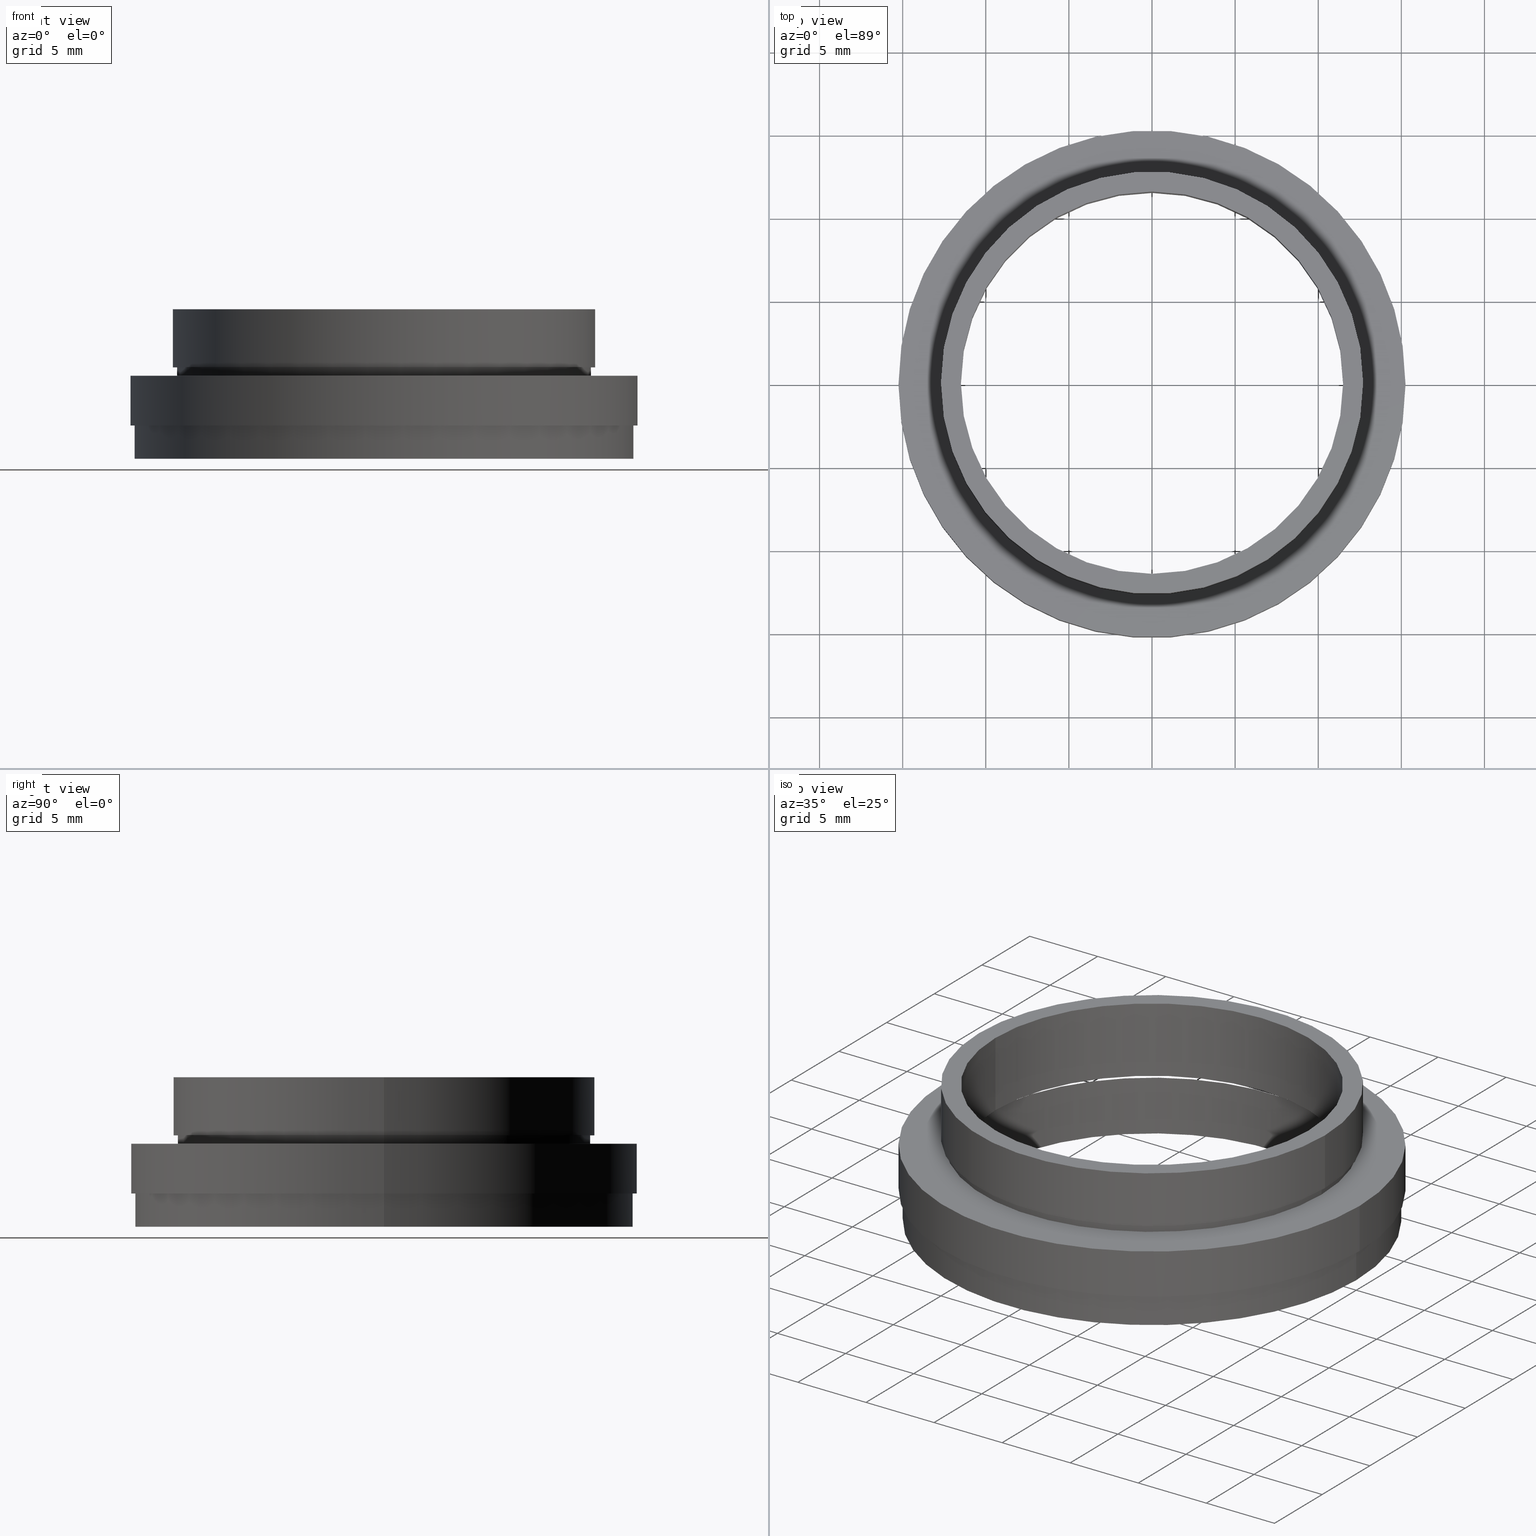
[diagram: canonical four-view strip — front | top / right | iso, engineering-drawing reading convention]
A machine part, canonical four-view strip (front | top / right | iso — engineering-drawing reading convention). The complete STEP part file that produces these views, byte-faithful:
ISO-10303-21;
HEADER;
FILE_DESCRIPTION (( 'STEP AP214' ),
    '1' );
FILE_NAME ('04TAC-C-09L.STEP',
    '2018-11-16T03:31:37',
    ( '' ),
    ( '' ),
    'SwSTEP 2.0',
    'SolidWorks 2016',
    '' );
FILE_SCHEMA (( 'AUTOMOTIVE_DESIGN' ));
ENDSEC;

DATA;
#1 = ORIENTED_EDGE ( 'NONE', *, *, #219, .F. ) ;
#2 = ORIENTED_EDGE ( 'NONE', *, *, #261, .F. ) ;
#3 = EDGE_CURVE ( 'NONE', #107, #171, #446, .T. ) ;
#4 = ADVANCED_FACE ( 'NONE', ( #790, #615 ), #26, .F. ) ;
#5 = PRESENTATION_LAYER_ASSIGNMENT (  '', '', ( #53 ) ) ;
#6 = DIRECTION ( 'NONE',  ( -0.0000000000000000000, -0.0000000000000000000, 1.000000000000000000 ) ) ;
#7 = COLOUR_RGB ( '',0.2980392156862745100, 0.2980392156862745100, 0.2980392156862745100 ) ;
#8 = DIRECTION ( 'NONE',  ( -0.0000000000000000000, -0.0000000000000000000, 1.000000000000000000 ) ) ;
#9 = AXIS2_PLACEMENT_3D ( 'NONE', #243, #699, #841 ) ;
#10 = VERTEX_POINT ( 'NONE', #824 ) ;
#11 = CYLINDRICAL_SURFACE ( 'NONE', #94, 12.30299999999999900 ) ;
#12 = DIRECTION ( 'NONE',  ( -0.0000000000000000000, -0.0000000000000000000, 1.000000000000000000 ) ) ;
#13 = PRESENTATION_STYLE_ASSIGNMENT (( #762 ) ) ;
#14 = SURFACE_SIDE_STYLE ('',( #689 ) ) ;
#15 = MECHANICAL_DESIGN_GEOMETRIC_PRESENTATION_REPRESENTATION (  '', ( #731 ), #832 ) ;
#16 = CYLINDRICAL_SURFACE ( 'NONE', #301, 12.44500000000000000 ) ;
#17 = CARTESIAN_POINT ( 'NONE',  ( 0.0000000000000000000, 0.0000000000000000000, -7.000000000000006200 ) ) ;
#18 = SURFACE_STYLE_USAGE ( .BOTH. , #479 ) ;
#19 = ORIENTED_EDGE ( 'NONE', *, *, #520, .F. ) ;
#20 = ORIENTED_EDGE ( 'NONE', *, *, #254, .F. ) ;
#21 = SURFACE_SIDE_STYLE ('',( #333 ) ) ;
#22 =( GEOMETRIC_REPRESENTATION_CONTEXT ( 3 ) GLOBAL_UNCERTAINTY_ASSIGNED_CONTEXT ( ( #40 ) ) GLOBAL_UNIT_ASSIGNED_CONTEXT ( ( #161, #558, #98 ) ) REPRESENTATION_CONTEXT ( 'NONE', 'WORKASPACE' ) );
#23 = SURFACE_STYLE_USAGE ( .BOTH. , #482 ) ;
#24 =( NAMED_UNIT ( * ) PLANE_ANGLE_UNIT ( ) SI_UNIT ( $, .RADIAN. ) );
#25 = FILL_AREA_STYLE ('',( #93 ) ) ;
#26 = PLANE ( 'NONE',  #532 ) ;
#27 = MECHANICAL_DESIGN_GEOMETRIC_PRESENTATION_REPRESENTATION (  '', ( #793 ), #71 ) ;
#28 = DIRECTION ( 'NONE',  ( -0.0000000000000000000, -0.0000000000000000000, 1.000000000000000000 ) ) ;
#29 = DIRECTION ( 'NONE',  ( 1.000000000000000000, 0.0000000000000000000, 0.0000000000000000000 ) ) ;
#30 = CIRCLE ( 'NONE', #105, 12.69999999999999900 ) ;
#31 = SURFACE_STYLE_FILL_AREA ( #119 ) ;
#32 = ORIENTED_EDGE ( 'NONE', *, *, #848, .F. ) ;
#33 = DIRECTION ( 'NONE',  ( 1.000000000000000000, 0.0000000000000000000, 0.0000000000000000000 ) ) ;
#34 = DIRECTION ( 'NONE',  ( 1.000000000000000000, 0.0000000000000000000, 0.0000000000000000000 ) ) ;
#35 = EDGE_CURVE ( 'NONE', #112, #673, #30, .T. ) ;
#36 = CARTESIAN_POINT ( 'NONE',  ( 0.0000000000000000000, 0.0000000000000000000, -5.299999999999998900 ) ) ;
#37 = EDGE_LOOP ( 'NONE', ( #608, #345, #79, #251 ) ) ;
#38 = DIRECTION ( 'NONE',  ( 1.000000000000000000, 0.0000000000000000000, 0.0000000000000000000 ) ) ;
#39 = PRESENTATION_LAYER_ASSIGNMENT (  '', '', ( #756 ) ) ;
#40 = UNCERTAINTY_MEASURE_WITH_UNIT (LENGTH_MEASURE( 1.000000000000000100E-005 ), #161, 'distance_accuracy_value', 'NONE');
#41 = SURFACE_SIDE_STYLE ('',( #129 ) ) ;
#42 = STYLED_ITEM ( 'NONE', ( #255 ), #462 ) ;
#43 = DIRECTION ( 'NONE',  ( 0.0000000000000000000, 0.0000000000000000000, 1.000000000000000000 ) ) ;
#44 = CARTESIAN_POINT ( 'NONE',  ( 0.0000000000000000000, 0.0000000000000000000, 0.0000000000000000000 ) ) ;
#45 = FACE_OUTER_BOUND ( 'NONE', #248, .T. ) ;
#46 = EDGE_LOOP ( 'NONE', ( #32, #326, #311, #685 ) ) ;
#47 = ORIENTED_EDGE ( 'NONE', *, *, #77, .F. ) ;
#48 = EDGE_CURVE ( 'NONE', #149, #507, #702, .T. ) ;
#49 =( NAMED_UNIT ( * ) SI_UNIT ( $, .STERADIAN. ) SOLID_ANGLE_UNIT ( ) );
#50 = FACE_OUTER_BOUND ( 'NONE', #37, .T. ) ;
#51 = DIRECTION ( 'NONE',  ( 1.000000000000000000, 0.0000000000000000000, 0.0000000000000000000 ) ) ;
#52 = SURFACE_SIDE_STYLE ('',( #630 ) ) ;
#53 = STYLED_ITEM ( 'NONE', ( #710 ), #741 ) ;
#54 = CARTESIAN_POINT ( 'NONE',  ( -12.30299999999999900, 1.506682956990988600E-015, 222.4624572051069700 ) ) ;
#55 = CARTESIAN_POINT ( 'NONE',  ( 0.0000000000000000000, 0.0000000000000000000, -9.000000000000007100 ) ) ;
#56 = VECTOR ( 'NONE', #850, 1000.000000000000000 ) ;
#57 = ORIENTED_EDGE ( 'NONE', *, *, #175, .F. ) ;
#58 = DIRECTION ( 'NONE',  ( -0.0000000000000000000, -0.0000000000000000000, 1.000000000000000000 ) ) ;
#59 = PRESENTATION_LAYER_ASSIGNMENT (  '', '', ( #779 ) ) ;
#60 = COLOUR_RGB ( '',0.2980392156862745100, 0.2980392156862745100, 0.2980392156862745100 ) ;
#61 = CARTESIAN_POINT ( 'NONE',  ( -12.95500000000000000, 1.586529928295396000E-015, -5.299999999999998900 ) ) ;
#62 = PRESENTATION_STYLE_ASSIGNMENT (( #576 ) ) ;
#63 = ORIENTED_EDGE ( 'NONE', *, *, #560, .T. ) ;
#64 = MECHANICAL_DESIGN_GEOMETRIC_PRESENTATION_REPRESENTATION (  '', ( #756 ), #540 ) ;
#65 = CYLINDRICAL_SURFACE ( 'NONE', #151, 11.50000000000000000 ) ;
#66 = STYLED_ITEM ( 'NONE', ( #764 ), #649 ) ;
#67 = ADVANCED_FACE ( 'NONE', ( #359 ), #387, .T. ) ;
#68 = CIRCLE ( 'NONE', #789, 12.44500000000000000 ) ;
#69 = CYLINDRICAL_SURFACE ( 'NONE', #590, 12.95500000000000000 ) ;
#70 = FACE_OUTER_BOUND ( 'NONE', #803, .T. ) ;
#71 =( GEOMETRIC_REPRESENTATION_CONTEXT ( 3 ) GLOBAL_UNCERTAINTY_ASSIGNED_CONTEXT ( ( #116 ) ) GLOBAL_UNIT_ASSIGNED_CONTEXT ( ( #643, #253, #707 ) ) REPRESENTATION_CONTEXT ( 'NONE', 'WORKASPACE' ) );
#72 = FACE_OUTER_BOUND ( 'NONE', #485, .T. ) ;
#73 = OPEN_SHELL ( 'NONE', ( #346, #462, #424, #716, #130, #4, #415, #67, #157, #649, #680 ) ) ;
#74 = DIRECTION ( 'NONE',  ( 1.000000000000000000, 0.0000000000000000000, 0.0000000000000000000 ) ) ;
#75 = ORIENTED_EDGE ( 'NONE', *, *, #471, .T. ) ;
#76 = DIRECTION ( 'NONE',  ( -0.0000000000000000000, -0.0000000000000000000, 1.000000000000000000 ) ) ;
#77 = EDGE_CURVE ( 'NONE', #542, #556, #561, .T. ) ;
#78 = CARTESIAN_POINT ( 'NONE',  ( -15.25000000000000000, 1.867586368699713800E-015, 222.4624572051069700 ) ) ;
#79 = ORIENTED_EDGE ( 'NONE', *, *, #591, .T. ) ;
#80 = CARTESIAN_POINT ( 'NONE',  ( 0.0000000000000000000, 0.0000000000000000000, -9.000000000000007100 ) ) ;
#81 = PRESENTATION_LAYER_ASSIGNMENT (  '', '', ( #42 ) ) ;
#82 = DIRECTION ( 'NONE',  ( -0.0000000000000000000, -0.0000000000000000000, 1.000000000000000000 ) ) ;
#83 = DIRECTION ( 'NONE',  ( -0.0000000000000000000, -0.0000000000000000000, 1.000000000000000000 ) ) ;
#84 = FILL_AREA_STYLE_COLOUR ( '', #429 ) ;
#85 = FILL_AREA_STYLE ('',( #283 ) ) ;
#86 = SURFACE_STYLE_USAGE ( .BOTH. , #547 ) ;
#87 = EDGE_CURVE ( 'NONE', #285, #440, #229, .T. ) ;
#88 = ADVANCED_FACE ( 'NONE', ( #135 ), #69, .F. ) ;
#89 = DIRECTION ( 'NONE',  ( -0.0000000000000000000, -0.0000000000000000000, 1.000000000000000000 ) ) ;
#90 = DIRECTION ( 'NONE',  ( -0.0000000000000000000, -0.0000000000000000000, 1.000000000000000000 ) ) ;
#91 = SURFACE_STYLE_FILL_AREA ( #494 ) ;
#92 = ORIENTED_EDGE ( 'NONE', *, *, #461, .T. ) ;
#93 = FILL_AREA_STYLE_COLOUR ( '', #580 ) ;
#94 = AXIS2_PLACEMENT_3D ( 'NONE', #611, #743, #274 ) ;
#95 = DIRECTION ( 'NONE',  ( 1.000000000000000000, 0.0000000000000000000, 0.0000000000000000000 ) ) ;
#96 = ORIENTED_EDGE ( 'NONE', *, *, #296, .T. ) ;
#97 = DIRECTION ( 'NONE',  ( -0.0000000000000000000, -0.0000000000000000000, 1.000000000000000000 ) ) ;
#98 =( NAMED_UNIT ( * ) SI_UNIT ( $, .STERADIAN. ) SOLID_ANGLE_UNIT ( ) );
#99 = SURFACE_SIDE_STYLE ('',( #91 ) ) ;
#100 = MECHANICAL_DESIGN_GEOMETRIC_PRESENTATION_REPRESENTATION (  '', ( #779 ), #139 ) ;
#101 = DIRECTION ( 'NONE',  ( -0.0000000000000000000, -0.0000000000000000000, 1.000000000000000000 ) ) ;
#102 = CIRCLE ( 'NONE', #758, 15.25000000000000000 ) ;
#103 = ORIENTED_EDGE ( 'NONE', *, *, #237, .F. ) ;
#104 =( LENGTH_UNIT ( ) NAMED_UNIT ( * ) SI_UNIT ( .MILLI., .METRE. ) );
#105 = AXIS2_PLACEMENT_3D ( 'NONE', #358, #90, #163 ) ;
#106 = DIRECTION ( 'NONE',  ( 1.000000000000000000, 0.0000000000000000000, 0.0000000000000000000 ) ) ;
#107 = VERTEX_POINT ( 'NONE', #222 ) ;
#108 = DIRECTION ( 'NONE',  ( 0.0000000000000000000, 0.0000000000000000000, -1.000000000000000000 ) ) ;
#109 = AXIS2_PLACEMENT_3D ( 'NONE', #159, #553, #95 ) ;
#110 =( LENGTH_UNIT ( ) NAMED_UNIT ( * ) SI_UNIT ( .MILLI., .METRE. ) );
#111 = CARTESIAN_POINT ( 'NONE',  ( 0.0000000000000000000, 0.0000000000000000000, 222.4624572051069700 ) ) ;
#112 = VERTEX_POINT ( 'NONE', #496 ) ;
#113 = ORIENTED_EDGE ( 'NONE', *, *, #414, .T. ) ;
#114 = CARTESIAN_POINT ( 'NONE',  ( 0.0000000000000000000, 12.95500000000000000, -4.799999999999998900 ) ) ;
#115 =( LENGTH_UNIT ( ) NAMED_UNIT ( * ) SI_UNIT ( .MILLI., .METRE. ) );
#116 = UNCERTAINTY_MEASURE_WITH_UNIT (LENGTH_MEASURE( 1.000000000000000100E-005 ), #643, 'distance_accuracy_value', 'NONE');
#117 = PLANE ( 'NONE',  #599 ) ;
#118 = DIRECTION ( 'NONE',  ( 1.000000000000000000, 0.0000000000000000000, 0.0000000000000000000 ) ) ;
#119 = FILL_AREA_STYLE ('',( #318 ) ) ;
#120 = EDGE_CURVE ( 'NONE', #673, #112, #304, .T. ) ;
#121 = CARTESIAN_POINT ( 'NONE',  ( -15.00000000000000000, 1.836970198721029600E-015, 222.4624572051069700 ) ) ;
#122 = FACE_OUTER_BOUND ( 'NONE', #570, .T. ) ;
#123 = EDGE_LOOP ( 'NONE', ( #134, #751, #759, #694 ) ) ;
#124 = UNCERTAINTY_MEASURE_WITH_UNIT (LENGTH_MEASURE( 1.000000000000000100E-005 ), #617, 'distance_accuracy_value', 'NONE');
#125 = MECHANICAL_DESIGN_GEOMETRIC_PRESENTATION_REPRESENTATION (  '', ( #42 ), #169 ) ;
#126 = LINE ( 'NONE', #78, #298 ) ;
#127 = ORIENTED_EDGE ( 'NONE', *, *, #461, .F. ) ;
#128 = FACE_OUTER_BOUND ( 'NONE', #266, .T. ) ;
#129 = SURFACE_STYLE_FILL_AREA ( #434 ) ;
#130 = ADVANCED_FACE ( 'NONE', ( #340 ), #323, .F. ) ;
#131 = PRESENTATION_STYLE_ASSIGNMENT (( #290 ) ) ;
#132 = ORIENTED_EDGE ( 'NONE', *, *, #337, .F. ) ;
#133 = EDGE_CURVE ( 'NONE', #401, #185, #857, .T. ) ;
#134 = ORIENTED_EDGE ( 'NONE', *, *, #87, .F. ) ;
#135 = FACE_OUTER_BOUND ( 'NONE', #123, .T. ) ;
#136 =( NAMED_UNIT ( * ) PLANE_ANGLE_UNIT ( ) SI_UNIT ( $, .RADIAN. ) );
#137 = MECHANICAL_DESIGN_GEOMETRIC_PRESENTATION_REPRESENTATION (  '', ( #53 ), #181 ) ;
#138 = CARTESIAN_POINT ( 'NONE',  ( 0.0000000000000000000, 0.0000000000000000000, -5.299999999999998900 ) ) ;
#139 =( GEOMETRIC_REPRESENTATION_CONTEXT ( 3 ) GLOBAL_UNCERTAINTY_ASSIGNED_CONTEXT ( ( #211 ) ) GLOBAL_UNIT_ASSIGNED_CONTEXT ( ( #681, #224, #619 ) ) REPRESENTATION_CONTEXT ( 'NONE', 'WORKASPACE' ) );
#140 = FILL_AREA_STYLE_COLOUR ( '', #574 ) ;
#141 = VECTOR ( 'NONE', #586, 1000.000000000000000 ) ;
#142 = EDGE_LOOP ( 'NONE', ( #213, #713 ) ) ;
#143 = CARTESIAN_POINT ( 'NONE',  ( 15.25000000000000000, 0.0000000000000000000, 222.4624572051069700 ) ) ;
#144 = SURFACE_STYLE_FILL_AREA ( #686 ) ;
#145 = CARTESIAN_POINT ( 'NONE',  ( 0.0000000000000000000, 0.0000000000000000000, 222.4624572051069700 ) ) ;
#146 = EDGE_CURVE ( 'NONE', #271, #829, #667, .T. ) ;
#147 = COLOUR_RGB ( '',0.2980392156862745100, 0.2980392156862745100, 0.2980392156862745100 ) ;
#148 = FACE_OUTER_BOUND ( 'NONE', #404, .T. ) ;
#149 = VERTEX_POINT ( 'NONE', #569 ) ;
#150 = EDGE_LOOP ( 'NONE', ( #92, #714, #733, #436 ) ) ;
#151 = AXIS2_PLACEMENT_3D ( 'NONE', #719, #361, #33 ) ;
#152 = FILL_AREA_STYLE ('',( #675 ) ) ;
#153 = CARTESIAN_POINT ( 'NONE',  ( 0.0000000000000000000, 0.0000000000000000000, 222.4624572051069700 ) ) ;
#154 =( NAMED_UNIT ( * ) PLANE_ANGLE_UNIT ( ) SI_UNIT ( $, .RADIAN. ) );
#155 = DIRECTION ( 'NONE',  ( 0.0000000000000000000, -0.0000000000000000000, 1.000000000000000000 ) ) ;
#156 = CIRCLE ( 'NONE', #377, 12.95500000000000000 ) ;
#157 = ADVANCED_FACE ( 'NONE', ( #367, #537 ), #170, .F. ) ;
#158 = AXIS2_PLACEMENT_3D ( 'NONE', #321, #385, #777 ) ;
#159 = CARTESIAN_POINT ( 'NONE',  ( 0.0000000000000000000, 0.0000000000000000000, -3.500000000000003100 ) ) ;
#160 = DIRECTION ( 'NONE',  ( 1.000000000000000000, 0.0000000000000000000, 0.0000000000000000000 ) ) ;
#161 =( LENGTH_UNIT ( ) NAMED_UNIT ( * ) SI_UNIT ( .MILLI., .METRE. ) );
#162 = CYLINDRICAL_SURFACE ( 'NONE', #587, 15.00000000000000000 ) ;
#163 = DIRECTION ( 'NONE',  ( 1.000000000000000000, 0.0000000000000000000, 0.0000000000000000000 ) ) ;
#164 = EDGE_CURVE ( 'NONE', #149, #335, #68, .T. ) ;
#165 = CARTESIAN_POINT ( 'NONE',  ( 0.0000000000000000000, 0.0000000000000000000, 222.4624572051069700 ) ) ;
#166 = CIRCLE ( 'NONE', #571, 11.50000000000000000 ) ;
#167 = SURFACE_SIDE_STYLE ('',( #796 ) ) ;
#168 = SURFACE_STYLE_FILL_AREA ( #692 ) ;
#169 =( GEOMETRIC_REPRESENTATION_CONTEXT ( 3 ) GLOBAL_UNCERTAINTY_ASSIGNED_CONTEXT ( ( #368 ) ) GLOBAL_UNIT_ASSIGNED_CONTEXT ( ( #729, #205, #726 ) ) REPRESENTATION_CONTEXT ( 'NONE', 'WORKASPACE' ) );
#170 = PLANE ( 'NONE',  #838 ) ;
#171 = VERTEX_POINT ( 'NONE', #697 ) ;
#172 = DIRECTION ( 'NONE',  ( -0.0000000000000000000, -0.0000000000000000000, 1.000000000000000000 ) ) ;
#173 = CARTESIAN_POINT ( 'NONE',  ( -15.25000000000000000, 1.867586368699713800E-015, -7.000000000000006200 ) ) ;
#174 = VERTEX_POINT ( 'NONE', #173 ) ;
#175 = EDGE_CURVE ( 'NONE', #285, #843, #419, .T. ) ;
#176 = PRODUCT_CONTEXT ( 'NONE', #835, 'mechanical' ) ;
#177 = SURFACE_SIDE_STYLE ('',( #732 ) ) ;
#178 = DIRECTION ( 'NONE',  ( -0.0000000000000000000, -0.0000000000000000000, 1.000000000000000000 ) ) ;
#179 =( NAMED_UNIT ( * ) SI_UNIT ( $, .STERADIAN. ) SOLID_ANGLE_UNIT ( ) );
#180 =( NAMED_UNIT ( * ) SI_UNIT ( $, .STERADIAN. ) SOLID_ANGLE_UNIT ( ) );
#181 =( GEOMETRIC_REPRESENTATION_CONTEXT ( 3 ) GLOBAL_UNCERTAINTY_ASSIGNED_CONTEXT ( ( #435 ) ) GLOBAL_UNIT_ASSIGNED_CONTEXT ( ( #806, #339, #730 ) ) REPRESENTATION_CONTEXT ( 'NONE', 'WORKASPACE' ) );
#182 =( GEOMETRIC_REPRESENTATION_CONTEXT ( 3 ) GLOBAL_UNCERTAINTY_ASSIGNED_CONTEXT ( ( #305 ) ) GLOBAL_UNIT_ASSIGNED_CONTEXT ( ( #372, #836, #442 ) ) REPRESENTATION_CONTEXT ( 'NONE', 'WORKASPACE' ) );
#183 = DIRECTION ( 'NONE',  ( -0.0000000000000000000, -0.0000000000000000000, 1.000000000000000000 ) ) ;
#184 = PRESENTATION_STYLE_ASSIGNMENT (( #86 ) ) ;
#185 = VERTEX_POINT ( 'NONE', #307 ) ;
#186 = SURFACE_STYLE_USAGE ( .BOTH. , #584 ) ;
#187 = AXIS2_PLACEMENT_3D ( 'NONE', #548, #89, #487 ) ;
#188 = ORIENTED_EDGE ( 'NONE', *, *, #780, .T. ) ;
#189 = SHELL_BASED_SURFACE_MODEL ( 'NONE', ( #363, #73 ) );
#190 = EDGE_CURVE ( 'NONE', #463, #174, #277, .T. ) ;
#191 = CIRCLE ( 'NONE', #208, 11.50000000000000000 ) ;
#192 = EDGE_LOOP ( 'NONE', ( #391, #628, #384, #19 ) ) ;
#193 = ORIENTED_EDGE ( 'NONE', *, *, #337, .T. ) ;
#194 = ADVANCED_FACE ( 'NONE', ( #128 ), #223, .F. ) ;
#195 = PRESENTATION_LAYER_ASSIGNMENT (  '', '', ( #66 ) ) ;
#196 = SURFACE_STYLE_USAGE ( .BOTH. , #655 ) ;
#197 = AXIS2_PLACEMENT_3D ( 'NONE', #781, #388, #853 ) ;
#198 = SURFACE_STYLE_FILL_AREA ( #152 ) ;
#199 = COLOUR_RGB ( '',0.2980392156862745100, 0.2980392156862745100, 0.2980392156862745100 ) ;
#200 = ORIENTED_EDGE ( 'NONE', *, *, #87, .T. ) ;
#201 = FILL_AREA_STYLE_COLOUR ( '', #60 ) ;
#202 = MECHANICAL_DESIGN_GEOMETRIC_PRESENTATION_REPRESENTATION (  '', ( #309 ), #812 ) ;
#203 = DIRECTION ( 'NONE',  ( 1.000000000000000000, 0.0000000000000000000, 0.0000000000000000000 ) ) ;
#204 = EDGE_CURVE ( 'NONE', #271, #724, #400, .T. ) ;
#205 =( NAMED_UNIT ( * ) PLANE_ANGLE_UNIT ( ) SI_UNIT ( $, .RADIAN. ) );
#206 = CARTESIAN_POINT ( 'NONE',  ( -11.50000000000000000, 1.408343819019456200E-015, -4.799999999999998900 ) ) ;
#207 = DIRECTION ( 'NONE',  ( -0.0000000000000000000, -0.0000000000000000000, 1.000000000000000000 ) ) ;
#208 = AXIS2_PLACEMENT_3D ( 'NONE', #722, #267, #656 ) ;
#209 = CARTESIAN_POINT ( 'NONE',  ( 12.95500000000000000, 0.0000000000000000000, -4.799999999999998900 ) ) ;
#210 = VECTOR ( 'NONE', #312, 1000.000000000000000 ) ;
#211 = UNCERTAINTY_MEASURE_WITH_UNIT (LENGTH_MEASURE( 1.000000000000000100E-005 ), #681, 'distance_accuracy_value', 'NONE');
#212 = ORIENTED_EDGE ( 'NONE', *, *, #204, .T. ) ;
#213 = ORIENTED_EDGE ( 'NONE', *, *, #408, .T. ) ;
#214 = DIRECTION ( 'NONE',  ( 1.000000000000000000, 0.0000000000000000000, 0.0000000000000000000 ) ) ;
#215 = PRESENTATION_STYLE_ASSIGNMENT (( #765 ) ) ;
#216 = COLOUR_RGB ( '',0.2980392156862745100, 0.2980392156862745100, 0.2980392156862745100 ) ;
#217 = DIRECTION ( 'NONE',  ( 1.000000000000000000, 0.0000000000000000000, 0.0000000000000000000 ) ) ;
#218 = DIRECTION ( 'NONE',  ( -0.0000000000000000000, -0.0000000000000000000, 1.000000000000000000 ) ) ;
#219 = EDGE_CURVE ( 'NONE', #310, #401, #581, .T. ) ;
#220 = DIRECTION ( 'NONE',  ( 1.000000000000000000, 0.0000000000000000000, 0.0000000000000000000 ) ) ;
#221 = SURFACE_STYLE_USAGE ( .BOTH. , #678 ) ;
#222 = CARTESIAN_POINT ( 'NONE',  ( 15.00000000000000000, 0.0000000000000000000, -7.000000000000006200 ) ) ;
#223 = CYLINDRICAL_SURFACE ( 'NONE', #740, 12.95500000000000000 ) ;
#224 =( NAMED_UNIT ( * ) PLANE_ANGLE_UNIT ( ) SI_UNIT ( $, .RADIAN. ) );
#225 = ORIENTED_EDGE ( 'NONE', *, *, #296, .F. ) ;
#226 =( GEOMETRIC_REPRESENTATION_CONTEXT ( 3 ) GLOBAL_UNCERTAINTY_ASSIGNED_CONTEXT ( ( #588 ) ) GLOBAL_UNIT_ASSIGNED_CONTEXT ( ( #830, #378, #238 ) ) REPRESENTATION_CONTEXT ( 'NONE', 'WORKASPACE' ) );
#227 = DIRECTION ( 'NONE',  ( -0.0000000000000000000, -0.0000000000000000000, 1.000000000000000000 ) ) ;
#228 =( NAMED_UNIT ( * ) PLANE_ANGLE_UNIT ( ) SI_UNIT ( $, .RADIAN. ) );
#229 = LINE ( 'NONE', #688, #259 ) ;
#230 = SURFACE_SIDE_STYLE ('',( #144 ) ) ;
#231 = ORIENTED_EDGE ( 'NONE', *, *, #471, .F. ) ;
#232 = VECTOR ( 'NONE', #402, 1000.000000000000000 ) ;
#233 = AXIS2_PLACEMENT_3D ( 'NONE', #286, #676, #220 ) ;
#234 = FILL_AREA_STYLE_COLOUR ( '', #477 ) ;
#235 = DIRECTION ( 'NONE',  ( 1.000000000000000000, 0.0000000000000000000, 0.0000000000000000000 ) ) ;
#236 = VERTEX_POINT ( 'NONE', #641 ) ;
#237 = EDGE_CURVE ( 'NONE', #843, #721, #555, .T. ) ;
#238 =( NAMED_UNIT ( * ) SI_UNIT ( $, .STERADIAN. ) SOLID_ANGLE_UNIT ( ) );
#239 = LINE ( 'NONE', #823, #736 ) ;
#240 = FILL_AREA_STYLE_COLOUR ( '', #787 ) ;
#241 = MECHANICAL_DESIGN_GEOMETRIC_PRESENTATION_REPRESENTATION (  '', ( #66 ), #281 ) ;
#242 = CARTESIAN_POINT ( 'NONE',  ( 0.0000000000000000000, 0.0000000000000000000, 0.0000000000000000000 ) ) ;
#243 = CARTESIAN_POINT ( 'NONE',  ( 0.0000000000000000000, 0.0000000000000000000, 222.4624572051069700 ) ) ;
#244 = DIRECTION ( 'NONE',  ( -0.0000000000000000000, -0.0000000000000000000, 1.000000000000000000 ) ) ;
#245 = CIRCLE ( 'NONE', #187, 15.00000000000000000 ) ;
#246 =( LENGTH_UNIT ( ) NAMED_UNIT ( * ) SI_UNIT ( .MILLI., .METRE. ) );
#247 = DIRECTION ( 'NONE',  ( 1.000000000000000000, 0.0000000000000000000, 0.0000000000000000000 ) ) ;
#248 = EDGE_LOOP ( 'NONE', ( #776, #188, #840, #508 ) ) ;
#249 = AXIS2_PLACEMENT_3D ( 'NONE', #640, #183, #582 ) ;
#250 = CARTESIAN_POINT ( 'NONE',  ( 12.44500000000000000, 0.0000000000000000000, -4.000000000000003600 ) ) ;
#251 = ORIENTED_EDGE ( 'NONE', *, *, #544, .F. ) ;
#252 = FACE_OUTER_BOUND ( 'NONE', #650, .T. ) ;
#253 =( NAMED_UNIT ( * ) PLANE_ANGLE_UNIT ( ) SI_UNIT ( $, .RADIAN. ) );
#254 = EDGE_CURVE ( 'NONE', #604, #370, #720, .T. ) ;
#255 = PRESENTATION_STYLE_ASSIGNMENT (( #338 ) ) ;
#256 = ORIENTED_EDGE ( 'NONE', *, *, #77, .T. ) ;
#257 = AXIS2_PLACEMENT_3D ( 'NONE', #468, #8, #405 ) ;
#258 = ADVANCED_FACE ( 'NONE', ( #746, #72 ), #851, .F. ) ;
#259 = VECTOR ( 'NONE', #293, 1000.000000000000000 ) ;
#260 = PRESENTATION_STYLE_ASSIGNMENT (( #513 ) ) ;
#261 = EDGE_CURVE ( 'NONE', #542, #171, #644, .T. ) ;
#262 = COLOUR_RGB ( '',0.2980392156862745100, 0.2980392156862745100, 0.2980392156862745100 ) ;
#263 = UNCERTAINTY_MEASURE_WITH_UNIT (LENGTH_MEASURE( 1.000000000000000100E-005 ), #374, 'distance_accuracy_value', 'NONE');
#264 = FILL_AREA_STYLE ('',( #201 ) ) ;
#265 = AXIS2_PLACEMENT_3D ( 'NONE', #269, #661, #203 ) ;
#266 = EDGE_LOOP ( 'NONE', ( #57, #200, #284, #103 ) ) ;
#267 = DIRECTION ( 'NONE',  ( -0.0000000000000000000, -0.0000000000000000000, 1.000000000000000000 ) ) ;
#268 = AXIS2_PLACEMENT_3D ( 'NONE', #766, #822, #552 ) ;
#269 = CARTESIAN_POINT ( 'NONE',  ( 0.0000000000000000000, 0.0000000000000000000, -4.799999999999998900 ) ) ;
#270 = SURFACE_STYLE_FILL_AREA ( #804 ) ;
#271 = VERTEX_POINT ( 'NONE', #519 ) ;
#272 = UNCERTAINTY_MEASURE_WITH_UNIT (LENGTH_MEASURE( 1.000000000000000100E-005 ), #418, 'distance_accuracy_value', 'NONE');
#273 = FILL_AREA_STYLE_COLOUR ( '', #433 ) ;
#274 = DIRECTION ( 'NONE',  ( 1.000000000000000000, 0.0000000000000000000, 0.0000000000000000000 ) ) ;
#275 = ORIENTED_EDGE ( 'NONE', *, *, #133, .F. ) ;
#276 = EDGE_CURVE ( 'NONE', #236, #507, #828, .T. ) ;
#277 = CIRCLE ( 'NONE', #696, 15.25000000000000000 ) ;
#278 = CARTESIAN_POINT ( 'NONE',  ( 0.0000000000000000000, 15.25000000000000000, -6.999999999999999100 ) ) ;
#279 = DIRECTION ( 'NONE',  ( -0.0000000000000000000, -0.0000000000000000000, 1.000000000000000000 ) ) ;
#280 =( NAMED_UNIT ( * ) SI_UNIT ( $, .STERADIAN. ) SOLID_ANGLE_UNIT ( ) );
#281 =( GEOMETRIC_REPRESENTATION_CONTEXT ( 3 ) GLOBAL_UNCERTAINTY_ASSIGNED_CONTEXT ( ( #124 ) ) GLOBAL_UNIT_ASSIGNED_CONTEXT ( ( #617, #154, #550 ) ) REPRESENTATION_CONTEXT ( 'NONE', 'WORKASPACE' ) );
#282 = AXIS2_PLACEMENT_3D ( 'NONE', #577, #178, #637 ) ;
#283 = FILL_AREA_STYLE_COLOUR ( '', #330 ) ;
#284 = ORIENTED_EDGE ( 'NONE', *, *, #371, .T. ) ;
#285 = VERTEX_POINT ( 'NONE', #61 ) ;
#286 = CARTESIAN_POINT ( 'NONE',  ( 0.0000000000000000000, 0.0000000000000000000, -4.000000000000003600 ) ) ;
#287 = FILL_AREA_STYLE ('',( #354 ) ) ;
#288 = FILL_AREA_STYLE ('',( #755 ) ) ;
#289 = AXIS2_PLACEMENT_3D ( 'NONE', #449, #849, #380 ) ;
#290 = SURFACE_STYLE_USAGE ( .BOTH. , #748 ) ;
#291 = CARTESIAN_POINT ( 'NONE',  ( 0.0000000000000000000, 0.0000000000000000000, 222.4624572051069700 ) ) ;
#292 = CARTESIAN_POINT ( 'NONE',  ( -12.44500000000000000, 1.524072941538881100E-015, 222.4624572051069700 ) ) ;
#293 = DIRECTION ( 'NONE',  ( -0.0000000000000000000, -0.0000000000000000000, 1.000000000000000000 ) ) ;
#294 = FACE_BOUND ( 'NONE', #705, .T. ) ;
#295 = ORIENTED_EDGE ( 'NONE', *, *, #146, .F. ) ;
#296 = EDGE_CURVE ( 'NONE', #370, #604, #319, .T. ) ;
#297 = FILL_AREA_STYLE_COLOUR ( '', #147 ) ;
#298 = VECTOR ( 'NONE', #536, 1000.000000000000000 ) ;
#299 = EDGE_LOOP ( 'NONE', ( #651, #457 ) ) ;
#300 = FACE_OUTER_BOUND ( 'NONE', #46, .T. ) ;
#301 = AXIS2_PLACEMENT_3D ( 'NONE', #538, #83, #800 ) ;
#302 = SURFACE_SIDE_STYLE ('',( #394 ) ) ;
#303 = SURFACE_SIDE_STYLE ('',( #168 ) ) ;
#304 = CIRCLE ( 'NONE', #629, 12.69999999999999900 ) ;
#305 = UNCERTAINTY_MEASURE_WITH_UNIT (LENGTH_MEASURE( 1.000000000000000100E-005 ), #372, 'distance_accuracy_value', 'NONE');
#306 = CARTESIAN_POINT ( 'NONE',  ( -12.70000000000015900, 1.555301434917158000E-015, 0.0000000000000000000 ) ) ;
#307 = CARTESIAN_POINT ( 'NONE',  ( -11.50000000000000000, 1.408343819019456200E-015, 0.0000000000000000000 ) ) ;
#308 = COLOUR_RGB ( '',0.2980392156862745100, 0.2980392156862745100, 0.2980392156862745100 ) ;
#309 = STYLED_ITEM ( 'NONE', ( #593 ), #130 ) ;
#310 = VERTEX_POINT ( 'NONE', #386 ) ;
#311 = ORIENTED_EDGE ( 'NONE', *, *, #219, .T. ) ;
#312 = DIRECTION ( 'NONE',  ( -0.0000000000000000000, -0.0000000000000000000, 1.000000000000000000 ) ) ;
#313 = CARTESIAN_POINT ( 'NONE',  ( 11.50000000000000000, 0.0000000000000000000, 222.4624572051069700 ) ) ;
#314 = SURFACE_SIDE_STYLE ('',( #624 ) ) ;
#315 = PRESENTATION_STYLE_ASSIGNMENT (( #23 ) ) ;
#316 = AXIS2_PLACEMENT_3D ( 'NONE', #145, #82, #663 ) ;
#317 = FILL_AREA_STYLE_COLOUR ( '', #802 ) ;
#318 = FILL_AREA_STYLE_COLOUR ( '', #199 ) ;
#319 = CIRCLE ( 'NONE', #249, 12.70000000000015700 ) ;
#320 = STYLED_ITEM ( 'NONE', ( #399 ), #415 ) ;
#321 = CARTESIAN_POINT ( 'NONE',  ( 0.0000000000000000000, 0.0000000000000000000, -3.500000000000003100 ) ) ;
#322 = CYLINDRICAL_SURFACE ( 'NONE', #647, 12.70000000000007900 ) ;
#323 = CYLINDRICAL_SURFACE ( 'NONE', #397, 12.30299999999999900 ) ;
#324 = EDGE_CURVE ( 'NONE', #335, #149, #469, .T. ) ;
#325 = CIRCLE ( 'NONE', #825, 12.95500000000000000 ) ;
#326 = ORIENTED_EDGE ( 'NONE', *, *, #560, .F. ) ;
#327 = EDGE_LOOP ( 'NONE', ( #562, #659, #450, #1 ) ) ;
#328 = ADVANCED_FACE ( 'NONE', ( #122, #294 ), #117, .F. ) ;
#329 = STYLED_ITEM ( 'NONE', ( #315 ), #680 ) ;
#330 = COLOUR_RGB ( '',0.2980392156862745100, 0.2980392156862745100, 0.2980392156862745100 ) ;
#331 = CARTESIAN_POINT ( 'NONE',  ( 0.0000000000000000000, 0.0000000000000000000, 222.4624572051069700 ) ) ;
#332 = STYLED_ITEM ( 'NONE', ( #456 ), #328 ) ;
#333 = SURFACE_STYLE_FILL_AREA ( #481 ) ;
#334 = CARTESIAN_POINT ( 'NONE',  ( -12.44500000000000000, 1.524072941538881100E-015, -3.500000000000003100 ) ) ;
#335 = VERTEX_POINT ( 'NONE', #250 ) ;
#336 = CARTESIAN_POINT ( 'NONE',  ( 15.25000000000000000, 0.0000000000000000000, -4.000000000000003600 ) ) ;
#337 = EDGE_CURVE ( 'NONE', #724, #518, #567, .T. ) ;
#338 = SURFACE_STYLE_USAGE ( .BOTH. , #472 ) ;
#339 =( NAMED_UNIT ( * ) PLANE_ANGLE_UNIT ( ) SI_UNIT ( $, .RADIAN. ) );
#340 = FACE_OUTER_BOUND ( 'NONE', #525, .T. ) ;
#341 = AXIS2_PLACEMENT_3D ( 'NONE', #138, #529, #74 ) ;
#342 =( NAMED_UNIT ( * ) SI_UNIT ( $, .STERADIAN. ) SOLID_ANGLE_UNIT ( ) );
#343 = ORIENTED_EDGE ( 'NONE', *, *, #324, .F. ) ;
#344 =( NAMED_UNIT ( * ) PLANE_ANGLE_UNIT ( ) SI_UNIT ( $, .RADIAN. ) );
#345 = ORIENTED_EDGE ( 'NONE', *, *, #432, .T. ) ;
#346 = ADVANCED_FACE ( 'NONE', ( #45 ), #648, .T. ) ;
#347 =( NAMED_UNIT ( * ) SI_UNIT ( $, .STERADIAN. ) SOLID_ANGLE_UNIT ( ) );
#348 = DIRECTION ( 'NONE',  ( 1.000000000000000000, 0.0000000000000000000, 0.0000000000000000000 ) ) ;
#349 = AXIS2_PLACEMENT_3D ( 'NONE', #44, #501, #106 ) ;
#350 =( LENGTH_UNIT ( ) NAMED_UNIT ( * ) SI_UNIT ( .MILLI., .METRE. ) );
#351 = PLANE ( 'NONE',  #677 ) ;
#352 =( NAMED_UNIT ( * ) SI_UNIT ( $, .STERADIAN. ) SOLID_ANGLE_UNIT ( ) );
#353 = FILL_AREA_STYLE_COLOUR ( '', #7 ) ;
#354 = FILL_AREA_STYLE_COLOUR ( '', #216 ) ;
#355 = UNCERTAINTY_MEASURE_WITH_UNIT (LENGTH_MEASURE( 1.000000000000000100E-005 ), #350, 'distance_accuracy_value', 'NONE');
#356 = FILL_AREA_STYLE ('',( #375 ) ) ;
#357 = CARTESIAN_POINT ( 'NONE',  ( 12.70000000000007900, 0.0000000000000000000, 222.4624572051069700 ) ) ;
#358 = CARTESIAN_POINT ( 'NONE',  ( 0.0000000000000000000, 0.0000000000000000000, -3.500000000000003100 ) ) ;
#359 = FACE_OUTER_BOUND ( 'NONE', #808, .T. ) ;
#360 = ORIENTED_EDGE ( 'NONE', *, *, #645, .T. ) ;
#361 = DIRECTION ( 'NONE',  ( -0.0000000000000000000, -0.0000000000000000000, 1.000000000000000000 ) ) ;
#362 = CARTESIAN_POINT ( 'NONE',  ( 0.0000000000000000000, 0.0000000000000000000, -7.000000000000006200 ) ) ;
#363 = OPEN_SHELL ( 'NONE', ( #523, #741, #194, #88, #328, #594, #258, #395 ) ) ;
#364 = PRESENTATION_LAYER_ASSIGNMENT (  '', '', ( #320 ) ) ;
#365 = FACE_OUTER_BOUND ( 'NONE', #327, .T. ) ;
#366 = DIRECTION ( 'NONE',  ( -0.0000000000000000000, -0.0000000000000000000, 1.000000000000000000 ) ) ;
#367 = FACE_BOUND ( 'NONE', #709, .T. ) ;
#368 = UNCERTAINTY_MEASURE_WITH_UNIT (LENGTH_MEASURE( 1.000000000000000100E-005 ), #729, 'distance_accuracy_value', 'NONE');
#369 = FACE_OUTER_BOUND ( 'NONE', #524, .T. ) ;
#370 = VERTEX_POINT ( 'NONE', #306 ) ;
#371 = EDGE_CURVE ( 'NONE', #440, #721, #325, .T. ) ;
#372 =( LENGTH_UNIT ( ) NAMED_UNIT ( * ) SI_UNIT ( .MILLI., .METRE. ) );
#373 = ORIENTED_EDGE ( 'NONE', *, *, #254, .T. ) ;
#374 =( LENGTH_UNIT ( ) NAMED_UNIT ( * ) SI_UNIT ( .MILLI., .METRE. ) );
#375 = FILL_AREA_STYLE_COLOUR ( '', #308 ) ;
#376 = DIRECTION ( 'NONE',  ( -0.0000000000000000000, -0.0000000000000000000, 1.000000000000000000 ) ) ;
#377 = AXIS2_PLACEMENT_3D ( 'NONE', #674, #218, #613 ) ;
#378 =( NAMED_UNIT ( * ) PLANE_ANGLE_UNIT ( ) SI_UNIT ( $, .RADIAN. ) );
#379 = DIRECTION ( 'NONE',  ( -0.0000000000000000000, -0.0000000000000000000, 1.000000000000000000 ) ) ;
#380 = DIRECTION ( 'NONE',  ( 1.000000000000000000, 0.0000000000000000000, 0.0000000000000000000 ) ) ;
#381 = COLOUR_RGB ( '',0.2980392156862745100, 0.2980392156862745100, 0.2980392156862745100 ) ;
#382 = PRESENTATION_LAYER_ASSIGNMENT (  '', '', ( #332 ) ) ;
#383 = VECTOR ( 'NONE', #703, 1000.000000000000000 ) ;
#384 = ORIENTED_EDGE ( 'NONE', *, *, #276, .F. ) ;
#385 = DIRECTION ( 'NONE',  ( -0.0000000000000000000, -0.0000000000000000000, 1.000000000000000000 ) ) ;
#386 = CARTESIAN_POINT ( 'NONE',  ( 11.50000000000000000, 0.0000000000000000000, -4.799999999999998900 ) ) ;
#387 = CYLINDRICAL_SURFACE ( 'NONE', #854, 12.44500000000000000 ) ;
#388 = DIRECTION ( 'NONE',  ( 0.0000000000000000000, 0.0000000000000000000, -1.000000000000000000 ) ) ;
#389 = EDGE_CURVE ( 'NONE', #112, #370, #839, .T. ) ;
#390 = COLOUR_RGB ( '',0.2980392156862745100, 0.2980392156862745100, 0.2980392156862745100 ) ;
#391 = ORIENTED_EDGE ( 'NONE', *, *, #324, .T. ) ;
#392 = EDGE_LOOP ( 'NONE', ( #212, #75 ) ) ;
#393 = STYLED_ITEM ( 'NONE', ( #563 ), #523 ) ;
#394 = SURFACE_STYLE_FILL_AREA ( #761 ) ;
#395 = ADVANCED_FACE ( 'NONE', ( #148 ), #744, .T. ) ;
#396 = VECTOR ( 'NONE', #28, 1000.000000000000000 ) ;
#397 = AXIS2_PLACEMENT_3D ( 'NONE', #165, #101, #235 ) ;
#398 = CARTESIAN_POINT ( 'NONE',  ( 15.00000000000000000, 0.0000000000000000000, -9.000000000000007100 ) ) ;
#399 = PRESENTATION_STYLE_ASSIGNMENT (( #817 ) ) ;
#400 = CIRCLE ( 'NONE', #700, 12.30299999999999900 ) ;
#401 = VERTEX_POINT ( 'NONE', #490 ) ;
#402 = DIRECTION ( 'NONE',  ( -0.0000000000000000000, -0.0000000000000000000, 1.000000000000000000 ) ) ;
#403 = STYLED_ITEM ( 'NONE', ( #215 ), #497 ) ;
#404 = EDGE_LOOP ( 'NONE', ( #411, #541, #360, #225 ) ) ;
#405 = DIRECTION ( 'NONE',  ( 1.000000000000000000, 0.0000000000000000000, 0.0000000000000000000 ) ) ;
#406 = COLOUR_RGB ( '',0.2980392156862745100, 0.2980392156862745100, 0.2980392156862745100 ) ;
#407 = MECHANICAL_DESIGN_GEOMETRIC_PRESENTATION_REPRESENTATION (  '', ( #320 ), #455 ) ;
#408 = EDGE_CURVE ( 'NONE', #795, #10, #423, .T. ) ;
#409 = DIRECTION ( 'NONE',  ( 1.000000000000000000, 0.0000000000000000000, 0.0000000000000000000 ) ) ;
#410 = SURFACE_STYLE_USAGE ( .BOTH. , #14 ) ;
#411 = ORIENTED_EDGE ( 'NONE', *, *, #389, .F. ) ;
#412 = DIRECTION ( 'NONE',  ( -0.0000000000000000000, -0.0000000000000000000, 1.000000000000000000 ) ) ;
#413 =( LENGTH_UNIT ( ) NAMED_UNIT ( * ) SI_UNIT ( .MILLI., .METRE. ) );
#414 = EDGE_CURVE ( 'NONE', #171, #107, #245, .T. ) ;
#415 = ADVANCED_FACE ( 'NONE', ( #70 ), #162, .T. ) ;
#416 = LINE ( 'NONE', #357, #396 ) ;
#417 = SURFACE_STYLE_USAGE ( .BOTH. , #21 ) ;
#418 =( LENGTH_UNIT ( ) NAMED_UNIT ( * ) SI_UNIT ( .MILLI., .METRE. ) );
#419 = CIRCLE ( 'NONE', #282, 12.95500000000000000 ) ;
#420 = SURFACE_SIDE_STYLE ('',( #595 ) ) ;
#421 = AXIS2_PLACEMENT_3D ( 'NONE', #291, #820, #488 ) ;
#422 = CARTESIAN_POINT ( 'NONE',  ( 12.69999999999999900, 0.0000000000000000000, -3.500000000000003100 ) ) ;
#423 = CIRCLE ( 'NONE', #233, 15.25000000000000000 ) ;
#424 = ADVANCED_FACE ( 'NONE', ( #683 ), #782, .T. ) ;
#425 = CARTESIAN_POINT ( 'NONE',  ( 0.0000000000000000000, 15.00000000000000000, -9.000000000000000000 ) ) ;
#426 = MECHANICAL_DESIGN_GEOMETRIC_PRESENTATION_REPRESENTATION (  '', ( #332 ), #467 ) ;
#427 = DIRECTION ( 'NONE',  ( -0.0000000000000000000, -0.0000000000000000000, 1.000000000000000000 ) ) ;
#428 = ORIENTED_EDGE ( 'NONE', *, *, #371, .F. ) ;
#429 = COLOUR_RGB ( '',0.2980392156862745100, 0.2980392156862745100, 0.2980392156862745100 ) ;
#430 = DIRECTION ( 'NONE',  ( -0.0000000000000000000, -0.0000000000000000000, 1.000000000000000000 ) ) ;
#431 = PRODUCT_DEFINITION_CONTEXT ( 'detailed design', #760, 'design' ) ;
#432 = EDGE_CURVE ( 'NONE', #174, #463, #102, .T. ) ;
#433 = COLOUR_RGB ( '',0.2980392156862745100, 0.2980392156862745100, 0.2980392156862745100 ) ;
#434 = FILL_AREA_STYLE ('',( #234 ) ) ;
#435 = UNCERTAINTY_MEASURE_WITH_UNIT (LENGTH_MEASURE( 1.000000000000000100E-005 ), #806, 'distance_accuracy_value', 'NONE');
#436 = ORIENTED_EDGE ( 'NONE', *, *, #631, .F. ) ;
#437 = DIRECTION ( 'NONE',  ( 1.000000000000000000, 0.0000000000000000000, 0.0000000000000000000 ) ) ;
#438 = DIRECTION ( 'NONE',  ( -0.0000000000000000000, -0.0000000000000000000, 1.000000000000000000 ) ) ;
#439 = PRESENTATION_LAYER_ASSIGNMENT (  '', '', ( #393 ) ) ;
#440 = VERTEX_POINT ( 'NONE', #609 ) ;
#441 = APPLICATION_PROTOCOL_DEFINITION ( 'draft international standard', 'automotive_design', 1998, #835 ) ;
#442 =( NAMED_UNIT ( * ) SI_UNIT ( $, .STERADIAN. ) SOLID_ANGLE_UNIT ( ) );
#443 = EDGE_CURVE ( 'NONE', #783, #310, #623, .T. ) ;
#444 =( NAMED_UNIT ( * ) SI_UNIT ( $, .STERADIAN. ) SOLID_ANGLE_UNIT ( ) );
#445 = MECHANICAL_DESIGN_GEOMETRIC_PRESENTATION_REPRESENTATION (  '', ( #763 ), #182 ) ;
#446 = CIRCLE ( 'NONE', #690, 15.00000000000000000 ) ;
#447 = DIRECTION ( 'NONE',  ( -0.0000000000000000000, -0.0000000000000000000, 1.000000000000000000 ) ) ;
#448 = FILL_AREA_STYLE ('',( #240 ) ) ;
#449 = CARTESIAN_POINT ( 'NONE',  ( 0.0000000000000000000, 0.0000000000000000000, -4.000000000000003600 ) ) ;
#450 = ORIENTED_EDGE ( 'NONE', *, *, #480, .T. ) ;
#451 = PRESENTATION_LAYER_ASSIGNMENT (  '', '', ( #403 ) ) ;
#452 = UNCERTAINTY_MEASURE_WITH_UNIT (LENGTH_MEASURE( 1.000000000000000100E-005 ), #484, 'distance_accuracy_value', 'NONE');
#453 = CARTESIAN_POINT ( 'NONE',  ( 0.0000000000000000000, 0.0000000000000000000, 0.0000000000000000000 ) ) ;
#454 = CIRCLE ( 'NONE', #856, 15.00000000000000000 ) ;
#455 =( GEOMETRIC_REPRESENTATION_CONTEXT ( 3 ) GLOBAL_UNCERTAINTY_ASSIGNED_CONTEXT ( ( #355 ) ) GLOBAL_UNIT_ASSIGNED_CONTEXT ( ( #350, #737, #280 ) ) REPRESENTATION_CONTEXT ( 'NONE', 'WORKASPACE' ) );
#456 = PRESENTATION_STYLE_ASSIGNMENT (( #701 ) ) ;
#457 = ORIENTED_EDGE ( 'NONE', *, *, #432, .F. ) ;
#458 = SHAPE_DEFINITION_REPRESENTATION ( #798, #497 ) ;
#459 = ORIENTED_EDGE ( 'NONE', *, *, #645, .F. ) ;
#460 = UNCERTAINTY_MEASURE_WITH_UNIT (LENGTH_MEASURE( 1.000000000000000100E-005 ), #682, 'distance_accuracy_value', 'NONE');
#461 = EDGE_CURVE ( 'NONE', #556, #542, #454, .T. ) ;
#462 = ADVANCED_FACE ( 'NONE', ( #603 ), #16, .T. ) ;
#463 = VERTEX_POINT ( 'NONE', #660 ) ;
#464 = ORIENTED_EDGE ( 'NONE', *, *, #414, .F. ) ;
#465 = PRESENTATION_LAYER_ASSIGNMENT (  '', '', ( #329 ) ) ;
#466 = DIRECTION ( 'NONE',  ( 1.000000000000000000, 0.0000000000000000000, 0.0000000000000000000 ) ) ;
#467 =( GEOMETRIC_REPRESENTATION_CONTEXT ( 3 ) GLOBAL_UNCERTAINTY_ASSIGNED_CONTEXT ( ( #633 ) ) GLOBAL_UNIT_ASSIGNED_CONTEXT ( ( #246, #639, #179 ) ) REPRESENTATION_CONTEXT ( 'NONE', 'WORKASPACE' ) );
#468 = CARTESIAN_POINT ( 'NONE',  ( 0.0000000000000000000, 0.0000000000000000000, -9.000000000000007100 ) ) ;
#469 = CIRCLE ( 'NONE', #289, 12.44500000000000000 ) ;
#470 = EDGE_LOOP ( 'NONE', ( #634, #113 ) ) ;
#471 = EDGE_CURVE ( 'NONE', #724, #271, #712, .T. ) ;
#472 = SURFACE_SIDE_STYLE ('',( #270 ) ) ;
#473 = FILL_AREA_STYLE ('',( #543 ) ) ;
#474 = LINE ( 'NONE', #602, #785 ) ;
#475 = ORIENTED_EDGE ( 'NONE', *, *, #164, .F. ) ;
#476 = COLOUR_RGB ( '',0.2980392156862745100, 0.2980392156862745100, 0.2980392156862745100 ) ;
#477 = COLOUR_RGB ( '',0.2980392156862745100, 0.2980392156862745100, 0.2980392156862745100 ) ;
#478 = MECHANICAL_DESIGN_GEOMETRIC_PRESENTATION_REPRESENTATION (  '', ( #393 ), #522 ) ;
#479 = SURFACE_SIDE_STYLE ('',( #600 ) ) ;
#480 = EDGE_CURVE ( 'NONE', #185, #401, #191, .T. ) ;
#481 = FILL_AREA_STYLE ('',( #353 ) ) ;
#482 = SURFACE_SIDE_STYLE ('',( #512 ) ) ;
#483 = VECTOR ( 'NONE', #172, 1000.000000000000000 ) ;
#484 =( LENGTH_UNIT ( ) NAMED_UNIT ( * ) SI_UNIT ( .MILLI., .METRE. ) );
#485 = EDGE_LOOP ( 'NONE', ( #373, #96 ) ) ;
#486 = ORIENTED_EDGE ( 'NONE', *, *, #389, .T. ) ;
#487 = DIRECTION ( 'NONE',  ( 1.000000000000000000, 0.0000000000000000000, 0.0000000000000000000 ) ) ;
#488 = DIRECTION ( 'NONE',  ( 1.000000000000000000, 0.0000000000000000000, 0.0000000000000000000 ) ) ;
#489 = FACE_OUTER_BOUND ( 'NONE', #299, .T. ) ;
#490 = CARTESIAN_POINT ( 'NONE',  ( 11.50000000000000000, 0.0000000000000000000, 0.0000000000000000000 ) ) ;
#491 = DIRECTION ( 'NONE',  ( -0.0000000000000000000, -0.0000000000000000000, 1.000000000000000000 ) ) ;
#492 = DIRECTION ( 'NONE',  ( 1.000000000000000000, 0.0000000000000000000, 0.0000000000000000000 ) ) ;
#493 = MECHANICAL_DESIGN_GEOMETRIC_PRESENTATION_REPRESENTATION (  '', ( #403 ), #531 ) ;
#494 = FILL_AREA_STYLE ('',( #810 ) ) ;
#495 = DIRECTION ( 'NONE',  ( -0.0000000000000000000, -0.0000000000000000000, 1.000000000000000000 ) ) ;
#496 = CARTESIAN_POINT ( 'NONE',  ( -12.69999999999999900, 1.555301434917143600E-015, -3.500000000000003100 ) ) ;
#497 = MANIFOLD_SURFACE_SHAPE_REPRESENTATION ( '04TAC-C-09L', ( #189, #657 ), #226 ) ;
#498 = PRESENTATION_LAYER_ASSIGNMENT (  '', '', ( #535 ) ) ;
#499 = SURFACE_STYLE_USAGE ( .BOTH. , #41 ) ;
#500 = CIRCLE ( 'NONE', #695, 12.30299999999999900 ) ;
#501 = DIRECTION ( 'NONE',  ( -0.0000000000000000000, -0.0000000000000000000, 1.000000000000000000 ) ) ;
#502 = VECTOR ( 'NONE', #438, 1000.000000000000000 ) ;
#503 = EDGE_CURVE ( 'NONE', #829, #518, #539, .T. ) ;
#504 =( NAMED_UNIT ( * ) PLANE_ANGLE_UNIT ( ) SI_UNIT ( $, .RADIAN. ) );
#505 = CARTESIAN_POINT ( 'NONE',  ( 0.0000000000000000000, 12.44500000000000000, -4.000000000000000000 ) ) ;
#506 = SURFACE_STYLE_FILL_AREA ( #356 ) ;
#507 = VERTEX_POINT ( 'NONE', #334 ) ;
#508 = ORIENTED_EDGE ( 'NONE', *, *, #591, .F. ) ;
#509 =( NAMED_UNIT ( * ) PLANE_ANGLE_UNIT ( ) SI_UNIT ( $, .RADIAN. ) );
#510 = MECHANICAL_DESIGN_GEOMETRIC_PRESENTATION_REPRESENTATION (  '', ( #329 ), #549 ) ;
#511 = DIRECTION ( 'NONE',  ( 0.0000000000000000000, -0.0000000000000000000, 1.000000000000000000 ) ) ;
#512 = SURFACE_STYLE_FILL_AREA ( #85 ) ;
#513 = SURFACE_STYLE_USAGE ( .BOTH. , #52 ) ;
#514 = UNCERTAINTY_MEASURE_WITH_UNIT (LENGTH_MEASURE( 1.000000000000000100E-005 ), #110, 'distance_accuracy_value', 'NONE');
#515 = DIRECTION ( 'NONE',  ( -0.0000000000000000000, -0.0000000000000000000, 1.000000000000000000 ) ) ;
#516 = PRESENTATION_STYLE_ASSIGNMENT (( #417 ) ) ;
#517 = DIRECTION ( 'NONE',  ( 1.000000000000000000, 0.0000000000000000000, 0.0000000000000000000 ) ) ;
#518 = VERTEX_POINT ( 'NONE', #601 ) ;
#519 = CARTESIAN_POINT ( 'NONE',  ( 12.30299999999999900, 0.0000000000000000000, -9.000000000000007100 ) ) ;
#520 = EDGE_CURVE ( 'NONE', #335, #236, #691, .T. ) ;
#521 = UNCERTAINTY_MEASURE_WITH_UNIT (LENGTH_MEASURE( 1.000000000000000100E-005 ), #596, 'distance_accuracy_value', 'NONE');
#522 =( GEOMETRIC_REPRESENTATION_CONTEXT ( 3 ) GLOBAL_UNCERTAINTY_ASSIGNED_CONTEXT ( ( #521 ) ) GLOBAL_UNIT_ASSIGNED_CONTEXT ( ( #596, #136, #527 ) ) REPRESENTATION_CONTEXT ( 'NONE', 'WORKASPACE' ) );
#523 = ADVANCED_FACE ( 'NONE', ( #369 ), #322, .T. ) ;
#524 = EDGE_LOOP ( 'NONE', ( #589, #486, #20, #459 ) ) ;
#525 = EDGE_LOOP ( 'NONE', ( #132, #530, #772, #693 ) ) ;
#526 = PRESENTATION_LAYER_ASSIGNMENT (  '', '', ( #698 ) ) ;
#527 =( NAMED_UNIT ( * ) SI_UNIT ( $, .STERADIAN. ) SOLID_ANGLE_UNIT ( ) );
#528 = VECTOR ( 'NONE', #750, 1000.000000000000000 ) ;
#529 = DIRECTION ( 'NONE',  ( -0.0000000000000000000, -0.0000000000000000000, 1.000000000000000000 ) ) ;
#530 = ORIENTED_EDGE ( 'NONE', *, *, #204, .F. ) ;
#531 =( GEOMETRIC_REPRESENTATION_CONTEXT ( 3 ) GLOBAL_UNCERTAINTY_ASSIGNED_CONTEXT ( ( #263 ) ) GLOBAL_UNIT_ASSIGNED_CONTEXT ( ( #374, #504, #444 ) ) REPRESENTATION_CONTEXT ( 'NONE', 'WORKASPACE' ) );
#532 = AXIS2_PLACEMENT_3D ( 'NONE', #425, #155, #160 ) ;
#533 = EDGE_LOOP ( 'NONE', ( #275, #597 ) ) ;
#534 = COLOUR_RGB ( '',0.2980392156862745100, 0.2980392156862745100, 0.2980392156862745100 ) ;
#535 = STYLED_ITEM ( 'NONE', ( #516 ), #424 ) ;
#536 = DIRECTION ( 'NONE',  ( -0.0000000000000000000, -0.0000000000000000000, 1.000000000000000000 ) ) ;
#537 = FACE_OUTER_BOUND ( 'NONE', #142, .T. ) ;
#538 = CARTESIAN_POINT ( 'NONE',  ( 0.0000000000000000000, 0.0000000000000000000, 222.4624572051069700 ) ) ;
#539 = CIRCLE ( 'NONE', #341, 12.30299999999999900 ) ;
#540 =( GEOMETRIC_REPRESENTATION_CONTEXT ( 3 ) GLOBAL_UNCERTAINTY_ASSIGNED_CONTEXT ( ( #460 ) ) GLOBAL_UNIT_ASSIGNED_CONTEXT ( ( #682, #228, #827 ) ) REPRESENTATION_CONTEXT ( 'NONE', 'WORKASPACE' ) );
#541 = ORIENTED_EDGE ( 'NONE', *, *, #35, .T. ) ;
#542 = VERTEX_POINT ( 'NONE', #792 ) ;
#543 = FILL_AREA_STYLE_COLOUR ( '', #534 ) ;
#544 = EDGE_CURVE ( 'NONE', #10, #795, #664, .T. ) ;
#545 = DIRECTION ( 'NONE',  ( -0.0000000000000000000, -0.0000000000000000000, 1.000000000000000000 ) ) ;
#546 = DIRECTION ( 'NONE',  ( 1.000000000000000000, 0.0000000000000000000, 0.0000000000000000000 ) ) ;
#547 = SURFACE_SIDE_STYLE ('',( #198 ) ) ;
#548 = CARTESIAN_POINT ( 'NONE',  ( 0.0000000000000000000, 0.0000000000000000000, -7.000000000000006200 ) ) ;
#549 =( GEOMETRIC_REPRESENTATION_CONTEXT ( 3 ) GLOBAL_UNCERTAINTY_ASSIGNED_CONTEXT ( ( #272 ) ) GLOBAL_UNIT_ASSIGNED_CONTEXT ( ( #418, #814, #347 ) ) REPRESENTATION_CONTEXT ( 'NONE', 'WORKASPACE' ) );
#550 =( NAMED_UNIT ( * ) SI_UNIT ( $, .STERADIAN. ) SOLID_ANGLE_UNIT ( ) );
#551 = DIRECTION ( 'NONE',  ( -0.0000000000000000000, -0.0000000000000000000, 1.000000000000000000 ) ) ;
#552 = DIRECTION ( 'NONE',  ( 1.000000000000000000, 0.0000000000000000000, 0.0000000000000000000 ) ) ;
#553 = DIRECTION ( 'NONE',  ( -0.0000000000000000000, -0.0000000000000000000, 1.000000000000000000 ) ) ;
#554 = SURFACE_STYLE_USAGE ( .BOTH. , #167 ) ;
#555 = LINE ( 'NONE', #775, #383 ) ;
#556 = VERTEX_POINT ( 'NONE', #398 ) ;
#557 = STYLED_ITEM ( 'NONE', ( #62 ), #346 ) ;
#558 =( NAMED_UNIT ( * ) PLANE_ANGLE_UNIT ( ) SI_UNIT ( $, .RADIAN. ) );
#559 = SURFACE_STYLE_USAGE ( .BOTH. , #99 ) ;
#560 = EDGE_CURVE ( 'NONE', #310, #783, #166, .T. ) ;
#561 = CIRCLE ( 'NONE', #799, 15.00000000000000000 ) ;
#562 = ORIENTED_EDGE ( 'NONE', *, *, #443, .F. ) ;
#563 = PRESENTATION_STYLE_ASSIGNMENT (( #196 ) ) ;
#564 = EDGE_CURVE ( 'NONE', #518, #829, #500, .T. ) ;
#565 = APPLICATION_PROTOCOL_DEFINITION ( 'draft international standard', 'automotive_design', 1998, #760 ) ;
#566 =( NAMED_UNIT ( * ) PLANE_ANGLE_UNIT ( ) SI_UNIT ( $, .RADIAN. ) );
#567 = LINE ( 'NONE', #54, #210 ) ;
#568 = EDGE_LOOP ( 'NONE', ( #127, #47 ) ) ;
#569 = CARTESIAN_POINT ( 'NONE',  ( -12.44500000000000000, 1.524072941538881100E-015, -4.000000000000003600 ) ) ;
#570 = EDGE_LOOP ( 'NONE', ( #786, #428 ) ) ;
#571 = AXIS2_PLACEMENT_3D ( 'NONE', #768, #427, #546 ) ;
#572 = CARTESIAN_POINT ( 'NONE',  ( 0.0000000000000000000, 0.0000000000000000000, -4.799999999999998900 ) ) ;
#573 = DIRECTION ( 'NONE',  ( -1.000000000000000000, 0.0000000000000000000, -0.0000000000000000000 ) ) ;
#574 = COLOUR_RGB ( '',0.7921568627450980000, 0.8196078431372548800, 0.9333333333333333500 ) ;
#575 = SURFACE_STYLE_FILL_AREA ( #287 ) ;
#576 = SURFACE_STYLE_USAGE ( .BOTH. , #177 ) ;
#577 = CARTESIAN_POINT ( 'NONE',  ( 0.0000000000000000000, 0.0000000000000000000, -5.299999999999998900 ) ) ;
#578 = MECHANICAL_DESIGN_GEOMETRIC_PRESENTATION_REPRESENTATION (  '', ( #698 ), #616 ) ;
#579 =( NAMED_UNIT ( * ) PLANE_ANGLE_UNIT ( ) SI_UNIT ( $, .RADIAN. ) );
#580 = COLOUR_RGB ( '',0.2980392156862745100, 0.2980392156862745100, 0.2980392156862745100 ) ;
#581 = LINE ( 'NONE', #313, #56 ) ;
#582 = DIRECTION ( 'NONE',  ( 1.000000000000000000, 0.0000000000000000000, 0.0000000000000000000 ) ) ;
#583 = ORIENTED_EDGE ( 'NONE', *, *, #631, .T. ) ;
#584 = SURFACE_SIDE_STYLE ('',( #31 ) ) ;
#585 = STYLED_ITEM ( 'NONE', ( #184 ), #67 ) ;
#586 = DIRECTION ( 'NONE',  ( -0.0000000000000000000, -0.0000000000000000000, 1.000000000000000000 ) ) ;
#587 = AXIS2_PLACEMENT_3D ( 'NONE', #153, #742, #217 ) ;
#588 = UNCERTAINTY_MEASURE_WITH_UNIT (LENGTH_MEASURE( 1.000000000000000100E-005 ), #830, 'distance_accuracy_value', 'NONE');
#589 = ORIENTED_EDGE ( 'NONE', *, *, #120, .T. ) ;
#590 = AXIS2_PLACEMENT_3D ( 'NONE', #739, #679, #38 ) ;
#591 = EDGE_CURVE ( 'NONE', #463, #795, #855, .T. ) ;
#592 = CIRCLE ( 'NONE', #109, 12.44500000000000000 ) ;
#593 = PRESENTATION_STYLE_ASSIGNMENT (( #499 ) ) ;
#594 = ADVANCED_FACE ( 'NONE', ( #300 ), #65, .F. ) ;
#595 = SURFACE_STYLE_FILL_AREA ( #25 ) ;
#596 =( LENGTH_UNIT ( ) NAMED_UNIT ( * ) SI_UNIT ( .MILLI., .METRE. ) );
#597 = ORIENTED_EDGE ( 'NONE', *, *, #480, .F. ) ;
#598 = CARTESIAN_POINT ( 'NONE',  ( 12.44500000000000000, 0.0000000000000000000, 222.4624572051069700 ) ) ;
#599 = AXIS2_PLACEMENT_3D ( 'NONE', #114, #511, #51 ) ;
#600 = SURFACE_STYLE_FILL_AREA ( #738 ) ;
#601 = CARTESIAN_POINT ( 'NONE',  ( -12.30299999999999900, 1.506682956990988600E-015, -5.299999999999998900 ) ) ;
#602 = CARTESIAN_POINT ( 'NONE',  ( -11.50000000000000000, 1.408343819019456200E-015, 222.4624572051069700 ) ) ;
#603 = FACE_OUTER_BOUND ( 'NONE', #192, .T. ) ;
#604 = VERTEX_POINT ( 'NONE', #749 ) ;
#605 = EDGE_CURVE ( 'NONE', #507, #236, #592, .T. ) ;
#606 = DIRECTION ( 'NONE',  ( 1.000000000000000000, 0.0000000000000000000, 0.0000000000000000000 ) ) ;
#607 = CARTESIAN_POINT ( 'NONE',  ( -12.30299999999999900, 1.506682956990988600E-015, -9.000000000000007100 ) ) ;
#608 = ORIENTED_EDGE ( 'NONE', *, *, #780, .F. ) ;
#609 = CARTESIAN_POINT ( 'NONE',  ( -12.95500000000000000, 1.586529928295396000E-015, -4.799999999999998900 ) ) ;
#610 = AXIS2_PLACEMENT_3D ( 'NONE', #635, #447, #844 ) ;
#611 = CARTESIAN_POINT ( 'NONE',  ( 0.0000000000000000000, 0.0000000000000000000, 222.4624572051069700 ) ) ;
#612 = CARTESIAN_POINT ( 'NONE',  ( 0.0000000000000000000, 0.0000000000000000000, 222.4624572051069700 ) ) ;
#613 = DIRECTION ( 'NONE',  ( 1.000000000000000000, 0.0000000000000000000, 0.0000000000000000000 ) ) ;
#614 = CARTESIAN_POINT ( 'NONE',  ( 0.0000000000000000000, 0.0000000000000000000, 222.4624572051069700 ) ) ;
#615 = FACE_BOUND ( 'NONE', #392, .T. ) ;
#616 =( GEOMETRIC_REPRESENTATION_CONTEXT ( 3 ) GLOBAL_UNCERTAINTY_ASSIGNED_CONTEXT ( ( #654 ) ) GLOBAL_UNIT_ASSIGNED_CONTEXT ( ( #115, #579, #180 ) ) REPRESENTATION_CONTEXT ( 'NONE', 'WORKASPACE' ) );
#617 =( LENGTH_UNIT ( ) NAMED_UNIT ( * ) SI_UNIT ( .MILLI., .METRE. ) );
#618 =( NAMED_UNIT ( * ) PLANE_ANGLE_UNIT ( ) SI_UNIT ( $, .RADIAN. ) );
#619 =( NAMED_UNIT ( * ) SI_UNIT ( $, .STERADIAN. ) SOLID_ANGLE_UNIT ( ) );
#620 =( LENGTH_UNIT ( ) NAMED_UNIT ( * ) SI_UNIT ( .MILLI., .METRE. ) );
#621 = SURFACE_STYLE_USAGE ( .BOTH. , #230 ) ;
#622 = PRESENTATION_LAYER_ASSIGNMENT (  '', '', ( #585 ) ) ;
#623 = CIRCLE ( 'NONE', #711, 11.50000000000000000 ) ;
#624 = SURFACE_STYLE_FILL_AREA ( #774 ) ;
#625 = ORIENTED_EDGE ( 'NONE', *, *, #48, .F. ) ;
#626 = MECHANICAL_DESIGN_GEOMETRIC_PRESENTATION_REPRESENTATION (  '', ( #535 ), #662 ) ;
#627 = CYLINDRICAL_SURFACE ( 'NONE', #316, 11.50000000000000000 ) ;
#628 = ORIENTED_EDGE ( 'NONE', *, *, #48, .T. ) ;
#629 = AXIS2_PLACEMENT_3D ( 'NONE', #757, #366, #831 ) ;
#630 = SURFACE_STYLE_FILL_AREA ( #448 ) ;
#631 = EDGE_CURVE ( 'NONE', #556, #107, #239, .T. ) ;
#632 = CARTESIAN_POINT ( 'NONE',  ( -12.70000000000007900, 1.555301434917148300E-015, 222.4624572051069700 ) ) ;
#633 = UNCERTAINTY_MEASURE_WITH_UNIT (LENGTH_MEASURE( 1.000000000000000100E-005 ), #246, 'distance_accuracy_value', 'NONE');
#634 = ORIENTED_EDGE ( 'NONE', *, *, #3, .T. ) ;
#635 = CARTESIAN_POINT ( 'NONE',  ( 0.0000000000000000000, 0.0000000000000000000, -4.000000000000003600 ) ) ;
#636 = FILL_AREA_STYLE ('',( #769 ) ) ;
#637 = DIRECTION ( 'NONE',  ( 1.000000000000000000, 0.0000000000000000000, 0.0000000000000000000 ) ) ;
#638 = STYLED_ITEM ( 'NONE', ( #778 ), #716 ) ;
#639 =( NAMED_UNIT ( * ) PLANE_ANGLE_UNIT ( ) SI_UNIT ( $, .RADIAN. ) );
#640 = CARTESIAN_POINT ( 'NONE',  ( 0.0000000000000000000, 0.0000000000000000000, 0.0000000000000000000 ) ) ;
#641 = CARTESIAN_POINT ( 'NONE',  ( 12.44500000000000000, 0.0000000000000000000, -3.500000000000003100 ) ) ;
#642 = PRESENTATION_LAYER_ASSIGNMENT (  '', '', ( #557 ) ) ;
#643 =( LENGTH_UNIT ( ) NAMED_UNIT ( * ) SI_UNIT ( .MILLI., .METRE. ) );
#644 = LINE ( 'NONE', #121, #141 ) ;
#645 = EDGE_CURVE ( 'NONE', #673, #604, #416, .T. ) ;
#646 = VECTOR ( 'NONE', #495, 1000.000000000000000 ) ;
#647 = AXIS2_PLACEMENT_3D ( 'NONE', #331, #6, #466 ) ;
#648 = CYLINDRICAL_SURFACE ( 'NONE', #9, 15.25000000000000000 ) ;
#649 = ADVANCED_FACE ( 'NONE', ( #50 ), #653, .T. ) ;
#650 = EDGE_LOOP ( 'NONE', ( #231, #193, #818, #295 ) ) ;
#651 = ORIENTED_EDGE ( 'NONE', *, *, #190, .F. ) ;
#652 = AXIS2_PLACEMENT_3D ( 'NONE', #453, #58, #517 ) ;
#653 = CYLINDRICAL_SURFACE ( 'NONE', #421, 15.25000000000000000 ) ;
#654 = UNCERTAINTY_MEASURE_WITH_UNIT (LENGTH_MEASURE( 1.000000000000000100E-005 ), #115, 'distance_accuracy_value', 'NONE');
#655 = SURFACE_SIDE_STYLE ('',( #725 ) ) ;
#656 = DIRECTION ( 'NONE',  ( 1.000000000000000000, 0.0000000000000000000, 0.0000000000000000000 ) ) ;
#657 = AXIS2_PLACEMENT_3D ( 'NONE', #242, #43, #437 ) ;
#658 = MECHANICAL_DESIGN_GEOMETRIC_PRESENTATION_REPRESENTATION (  '', ( #585 ), #708 ) ;
#659 = ORIENTED_EDGE ( 'NONE', *, *, #848, .T. ) ;
#660 = CARTESIAN_POINT ( 'NONE',  ( 15.25000000000000000, 0.0000000000000000000, -7.000000000000006200 ) ) ;
#661 = DIRECTION ( 'NONE',  ( -0.0000000000000000000, -0.0000000000000000000, 1.000000000000000000 ) ) ;
#662 =( GEOMETRIC_REPRESENTATION_CONTEXT ( 3 ) GLOBAL_UNCERTAINTY_ASSIGNED_CONTEXT ( ( #665 ) ) GLOBAL_UNIT_ASSIGNED_CONTEXT ( ( #813, #344, #734 ) ) REPRESENTATION_CONTEXT ( 'NONE', 'WORKASPACE' ) );
#663 = DIRECTION ( 'NONE',  ( 1.000000000000000000, 0.0000000000000000000, 0.0000000000000000000 ) ) ;
#664 = CIRCLE ( 'NONE', #610, 15.25000000000000000 ) ;
#665 = UNCERTAINTY_MEASURE_WITH_UNIT (LENGTH_MEASURE( 1.000000000000000100E-005 ), #813, 'distance_accuracy_value', 'NONE');
#666 = CARTESIAN_POINT ( 'NONE',  ( 0.0000000000000000000, 0.0000000000000000000, -4.799999999999998900 ) ) ;
#667 = LINE ( 'NONE', #834, #502 ) ;
#668 = PRESENTATION_LAYER_ASSIGNMENT (  '', '', ( #763 ) ) ;
#669 = DIRECTION ( 'NONE',  ( 1.000000000000000000, 0.0000000000000000000, 0.0000000000000000000 ) ) ;
#670 = DIRECTION ( 'NONE',  ( 0.0000000000000000000, -0.0000000000000000000, 1.000000000000000000 ) ) ;
#671 = ORIENTED_EDGE ( 'NONE', *, *, #443, .T. ) ;
#672 = EDGE_CURVE ( 'NONE', #843, #285, #156, .T. ) ;
#673 = VERTEX_POINT ( 'NONE', #422 ) ;
#674 = CARTESIAN_POINT ( 'NONE',  ( 0.0000000000000000000, 0.0000000000000000000, -5.299999999999998900 ) ) ;
#675 = FILL_AREA_STYLE_COLOUR ( '', #381 ) ;
#676 = DIRECTION ( 'NONE',  ( -0.0000000000000000000, -0.0000000000000000000, 1.000000000000000000 ) ) ;
#677 = AXIS2_PLACEMENT_3D ( 'NONE', #278, #670, #214 ) ;
#678 = SURFACE_SIDE_STYLE ('',( #575 ) ) ;
#679 = DIRECTION ( 'NONE',  ( -0.0000000000000000000, -0.0000000000000000000, 1.000000000000000000 ) ) ;
#680 = ADVANCED_FACE ( 'NONE', ( #489, #847 ), #351, .F. ) ;
#681 =( LENGTH_UNIT ( ) NAMED_UNIT ( * ) SI_UNIT ( .MILLI., .METRE. ) );
#682 =( LENGTH_UNIT ( ) NAMED_UNIT ( * ) SI_UNIT ( .MILLI., .METRE. ) );
#683 = FACE_OUTER_BOUND ( 'NONE', #150, .T. ) ;
#684 = MECHANICAL_DESIGN_GEOMETRIC_PRESENTATION_REPRESENTATION (  '', ( #557 ), #723 ) ;
#685 = ORIENTED_EDGE ( 'NONE', *, *, #133, .T. ) ;
#686 = FILL_AREA_STYLE ('',( #753 ) ) ;
#687 = UNCERTAINTY_MEASURE_WITH_UNIT (LENGTH_MEASURE( 1.000000000000000100E-005 ), #620, 'distance_accuracy_value', 'NONE');
#688 = CARTESIAN_POINT ( 'NONE',  ( -12.95500000000000000, 1.586529928295396000E-015, 222.4624572051069700 ) ) ;
#689 = SURFACE_STYLE_FILL_AREA ( #473 ) ;
#690 = AXIS2_PLACEMENT_3D ( 'NONE', #362, #279, #34 ) ;
#691 = LINE ( 'NONE', #598, #232 ) ;
#692 = FILL_AREA_STYLE ('',( #297 ) ) ;
#693 = ORIENTED_EDGE ( 'NONE', *, *, #503, .T. ) ;
#694 = ORIENTED_EDGE ( 'NONE', *, *, #794, .T. ) ;
#695 = AXIS2_PLACEMENT_3D ( 'NONE', #36, #430, #826 ) ;
#696 = AXIS2_PLACEMENT_3D ( 'NONE', #770, #379, #845 ) ;
#697 = CARTESIAN_POINT ( 'NONE',  ( -15.00000000000000000, 1.836970198721029600E-015, -7.000000000000006200 ) ) ;
#698 = STYLED_ITEM ( 'NONE', ( #260 ), #194 ) ;
#699 = DIRECTION ( 'NONE',  ( -0.0000000000000000000, -0.0000000000000000000, 1.000000000000000000 ) ) ;
#700 = AXIS2_PLACEMENT_3D ( 'NONE', #55, #515, #118 ) ;
#701 = SURFACE_STYLE_USAGE ( .BOTH. , #314 ) ;
#702 = LINE ( 'NONE', #292, #528 ) ;
#703 = DIRECTION ( 'NONE',  ( -0.0000000000000000000, -0.0000000000000000000, 1.000000000000000000 ) ) ;
#704 = PRESENTATION_STYLE_ASSIGNMENT (( #186 ) ) ;
#705 = EDGE_LOOP ( 'NONE', ( #63, #671 ) ) ;
#706 = PRODUCT_DEFINITION ( 'UNKNOWN', '', #752, #431 ) ;
#707 =( NAMED_UNIT ( * ) SI_UNIT ( $, .STERADIAN. ) SOLID_ANGLE_UNIT ( ) );
#708 =( GEOMETRIC_REPRESENTATION_CONTEXT ( 3 ) GLOBAL_UNCERTAINTY_ASSIGNED_CONTEXT ( ( #452 ) ) GLOBAL_UNIT_ASSIGNED_CONTEXT ( ( #484, #24, #815 ) ) REPRESENTATION_CONTEXT ( 'NONE', 'WORKASPACE' ) );
#709 = EDGE_LOOP ( 'NONE', ( #343, #475 ) ) ;
#710 = PRESENTATION_STYLE_ASSIGNMENT (( #410 ) ) ;
#711 = AXIS2_PLACEMENT_3D ( 'NONE', #666, #207, #606 ) ;
#712 = CIRCLE ( 'NONE', #257, 12.30299999999999900 ) ;
#713 = ORIENTED_EDGE ( 'NONE', *, *, #544, .T. ) ;
#714 = ORIENTED_EDGE ( 'NONE', *, *, #261, .T. ) ;
#715 = PRESENTATION_LAYER_ASSIGNMENT (  '', '', ( #309 ) ) ;
#716 = ADVANCED_FACE ( 'NONE', ( #252 ), #11, .F. ) ;
#717 = UNCERTAINTY_MEASURE_WITH_UNIT (LENGTH_MEASURE( 1.000000000000000100E-005 ), #104, 'distance_accuracy_value', 'NONE');
#718 = PRESENTATION_LAYER_ASSIGNMENT (  '', '', ( #638 ) ) ;
#719 = CARTESIAN_POINT ( 'NONE',  ( 0.0000000000000000000, 0.0000000000000000000, 222.4624572051069700 ) ) ;
#720 = CIRCLE ( 'NONE', #652, 12.70000000000015700 ) ;
#721 = VERTEX_POINT ( 'NONE', #209 ) ;
#722 = CARTESIAN_POINT ( 'NONE',  ( 0.0000000000000000000, 0.0000000000000000000, 0.0000000000000000000 ) ) ;
#723 =( GEOMETRIC_REPRESENTATION_CONTEXT ( 3 ) GLOBAL_UNCERTAINTY_ASSIGNED_CONTEXT ( ( #514 ) ) GLOBAL_UNIT_ASSIGNED_CONTEXT ( ( #110, #509, #49 ) ) REPRESENTATION_CONTEXT ( 'NONE', 'WORKASPACE' ) );
#724 = VERTEX_POINT ( 'NONE', #607 ) ;
#725 = SURFACE_STYLE_FILL_AREA ( #264 ) ;
#726 =( NAMED_UNIT ( * ) SI_UNIT ( $, .STERADIAN. ) SOLID_ANGLE_UNIT ( ) );
#727 = CARTESIAN_POINT ( 'NONE',  ( 12.95500000000000000, 0.0000000000000000000, -5.299999999999998900 ) ) ;
#728 = UNCERTAINTY_MEASURE_WITH_UNIT (LENGTH_MEASURE( 1.000000000000000100E-005 ), #413, 'distance_accuracy_value', 'NONE');
#729 =( LENGTH_UNIT ( ) NAMED_UNIT ( * ) SI_UNIT ( .MILLI., .METRE. ) );
#730 =( NAMED_UNIT ( * ) SI_UNIT ( $, .STERADIAN. ) SOLID_ANGLE_UNIT ( ) );
#731 = STYLED_ITEM ( 'NONE', ( #771 ), #4 ) ;
#732 = SURFACE_STYLE_FILL_AREA ( #636 ) ;
#733 = ORIENTED_EDGE ( 'NONE', *, *, #3, .F. ) ;
#734 =( NAMED_UNIT ( * ) SI_UNIT ( $, .STERADIAN. ) SOLID_ANGLE_UNIT ( ) );
#735 = STYLED_ITEM ( 'NONE', ( #833 ), #594 ) ;
#736 = VECTOR ( 'NONE', #227, 1000.000000000000000 ) ;
#737 =( NAMED_UNIT ( * ) PLANE_ANGLE_UNIT ( ) SI_UNIT ( $, .RADIAN. ) );
#738 = FILL_AREA_STYLE ('',( #84 ) ) ;
#739 = CARTESIAN_POINT ( 'NONE',  ( 0.0000000000000000000, 0.0000000000000000000, 222.4624572051069700 ) ) ;
#740 = AXIS2_PLACEMENT_3D ( 'NONE', #111, #244, #247 ) ;
#741 = ADVANCED_FACE ( 'NONE', ( #365 ), #627, .F. ) ;
#742 = DIRECTION ( 'NONE',  ( -0.0000000000000000000, -0.0000000000000000000, 1.000000000000000000 ) ) ;
#743 = DIRECTION ( 'NONE',  ( -0.0000000000000000000, -0.0000000000000000000, 1.000000000000000000 ) ) ;
#744 = CYLINDRICAL_SURFACE ( 'NONE', #268, 12.70000000000007900 ) ;
#745 = CARTESIAN_POINT ( 'NONE',  ( 0.0000000000000000000, 0.0000000000000000000, -9.000000000000007100 ) ) ;
#746 = FACE_BOUND ( 'NONE', #533, .T. ) ;
#747 = PRODUCT ( '04TAC-C-09L', '04TAC-C-09L', '', ( #176 ) ) ;
#748 = SURFACE_SIDE_STYLE ('',( #506 ) ) ;
#749 = CARTESIAN_POINT ( 'NONE',  ( 12.70000000000015700, 0.0000000000000000000, 0.0000000000000000000 ) ) ;
#750 = DIRECTION ( 'NONE',  ( -0.0000000000000000000, -0.0000000000000000000, 1.000000000000000000 ) ) ;
#751 = ORIENTED_EDGE ( 'NONE', *, *, #672, .F. ) ;
#752 = PRODUCT_DEFINITION_FORMATION_WITH_SPECIFIED_SOURCE ( 'ANY', '', #747, .NOT_KNOWN. ) ;
#753 = FILL_AREA_STYLE_COLOUR ( '', #476 ) ;
#754 = PRESENTATION_STYLE_ASSIGNMENT (( #554 ) ) ;
#755 = FILL_AREA_STYLE_COLOUR ( '', #406 ) ;
#756 = STYLED_ITEM ( 'NONE', ( #754 ), #88 ) ;
#757 = CARTESIAN_POINT ( 'NONE',  ( 0.0000000000000000000, 0.0000000000000000000, -3.500000000000003100 ) ) ;
#758 = AXIS2_PLACEMENT_3D ( 'NONE', #17, #412, #809 ) ;
#759 = ORIENTED_EDGE ( 'NONE', *, *, #237, .T. ) ;
#760 = APPLICATION_CONTEXT ( 'automotive_design' ) ;
#761 = FILL_AREA_STYLE ('',( #140 ) ) ;
#762 = SURFACE_STYLE_USAGE ( .BOTH. , #303 ) ;
#763 = STYLED_ITEM ( 'NONE', ( #13 ), #157 ) ;
#764 = PRESENTATION_STYLE_ASSIGNMENT (( #221 ) ) ;
#765 = SURFACE_STYLE_USAGE ( .BOTH. , #302 ) ;
#766 = CARTESIAN_POINT ( 'NONE',  ( 0.0000000000000000000, 0.0000000000000000000, 222.4624572051069700 ) ) ;
#767 = CARTESIAN_POINT ( 'NONE',  ( 0.0000000000000000000, 0.0000000000000000000, -4.000000000000003600 ) ) ;
#768 = CARTESIAN_POINT ( 'NONE',  ( 0.0000000000000000000, 0.0000000000000000000, -4.799999999999998900 ) ) ;
#769 = FILL_AREA_STYLE_COLOUR ( '', #390 ) ;
#770 = CARTESIAN_POINT ( 'NONE',  ( 0.0000000000000000000, 0.0000000000000000000, -7.000000000000006200 ) ) ;
#771 = PRESENTATION_STYLE_ASSIGNMENT (( #559 ) ) ;
#772 = ORIENTED_EDGE ( 'NONE', *, *, #146, .T. ) ;
#773 = MECHANICAL_DESIGN_GEOMETRIC_PRESENTATION_REPRESENTATION (  '', ( #638 ), #819 ) ;
#774 = FILL_AREA_STYLE ('',( #317 ) ) ;
#775 = CARTESIAN_POINT ( 'NONE',  ( 12.95500000000000000, 0.0000000000000000000, 222.4624572051069700 ) ) ;
#776 = ORIENTED_EDGE ( 'NONE', *, *, #190, .T. ) ;
#777 = DIRECTION ( 'NONE',  ( 1.000000000000000000, 0.0000000000000000000, 0.0000000000000000000 ) ) ;
#778 = PRESENTATION_STYLE_ASSIGNMENT (( #18 ) ) ;
#779 = STYLED_ITEM ( 'NONE', ( #131 ), #395 ) ;
#780 = EDGE_CURVE ( 'NONE', #174, #10, #126, .T. ) ;
#781 = CARTESIAN_POINT ( 'NONE',  ( 0.0000000000000000000, 11.50000000000000000, 1.925929944387235900E-031 ) ) ;
#782 = CYLINDRICAL_SURFACE ( 'NONE', #805, 15.00000000000000000 ) ;
#783 = VERTEX_POINT ( 'NONE', #206 ) ;
#784 = PRESENTATION_LAYER_ASSIGNMENT (  '', '', ( #731 ) ) ;
#785 = VECTOR ( 'NONE', #76, 1000.000000000000000 ) ;
#786 = ORIENTED_EDGE ( 'NONE', *, *, #794, .F. ) ;
#787 = COLOUR_RGB ( '',0.2980392156862745100, 0.2980392156862745100, 0.2980392156862745100 ) ;
#788 = PRESENTATION_LAYER_ASSIGNMENT (  '', '', ( #735 ) ) ;
#789 = AXIS2_PLACEMENT_3D ( 'NONE', #767, #376, #842 ) ;
#790 = FACE_OUTER_BOUND ( 'NONE', #568, .T. ) ;
#791 = ORIENTED_EDGE ( 'NONE', *, *, #520, .T. ) ;
#792 = CARTESIAN_POINT ( 'NONE',  ( -15.00000000000000000, 1.836970198721029600E-015, -9.000000000000007100 ) ) ;
#793 = STYLED_ITEM ( 'NONE', ( #704 ), #258 ) ;
#794 = EDGE_CURVE ( 'NONE', #721, #440, #807, .T. ) ;
#795 = VERTEX_POINT ( 'NONE', #336 ) ;
#796 = SURFACE_STYLE_FILL_AREA ( #288 ) ;
#797 = PRODUCT_RELATED_PRODUCT_CATEGORY ( 'part', '', ( #747 ) ) ;
#798 = PRODUCT_DEFINITION_SHAPE ( 'NONE', 'NONE',  #706 ) ;
#799 = AXIS2_PLACEMENT_3D ( 'NONE', #745, #491, #29 ) ;
#800 = DIRECTION ( 'NONE',  ( 1.000000000000000000, 0.0000000000000000000, 0.0000000000000000000 ) ) ;
#801 = CARTESIAN_POINT ( 'NONE',  ( 12.30299999999999900, 0.0000000000000000000, -5.299999999999998900 ) ) ;
#802 = COLOUR_RGB ( '',0.2980392156862745100, 0.2980392156862745100, 0.2980392156862745100 ) ;
#803 = EDGE_LOOP ( 'NONE', ( #2, #256, #583, #464 ) ) ;
#804 = FILL_AREA_STYLE ('',( #273 ) ) ;
#805 = AXIS2_PLACEMENT_3D ( 'NONE', #612, #545, #669 ) ;
#806 =( LENGTH_UNIT ( ) NAMED_UNIT ( * ) SI_UNIT ( .MILLI., .METRE. ) );
#807 = CIRCLE ( 'NONE', #265, 12.95500000000000000 ) ;
#808 = EDGE_LOOP ( 'NONE', ( #625, #816, #791, #852 ) ) ;
#809 = DIRECTION ( 'NONE',  ( 1.000000000000000000, 0.0000000000000000000, 0.0000000000000000000 ) ) ;
#810 = FILL_AREA_STYLE_COLOUR ( '', #262 ) ;
#811 =( NAMED_UNIT ( * ) PLANE_ANGLE_UNIT ( ) SI_UNIT ( $, .RADIAN. ) );
#812 =( GEOMETRIC_REPRESENTATION_CONTEXT ( 3 ) GLOBAL_UNCERTAINTY_ASSIGNED_CONTEXT ( ( #717 ) ) GLOBAL_UNIT_ASSIGNED_CONTEXT ( ( #104, #566, #821 ) ) REPRESENTATION_CONTEXT ( 'NONE', 'WORKASPACE' ) );
#813 =( LENGTH_UNIT ( ) NAMED_UNIT ( * ) SI_UNIT ( .MILLI., .METRE. ) );
#814 =( NAMED_UNIT ( * ) PLANE_ANGLE_UNIT ( ) SI_UNIT ( $, .RADIAN. ) );
#815 =( NAMED_UNIT ( * ) SI_UNIT ( $, .STERADIAN. ) SOLID_ANGLE_UNIT ( ) );
#816 = ORIENTED_EDGE ( 'NONE', *, *, #164, .T. ) ;
#817 = SURFACE_STYLE_USAGE ( .BOTH. , #420 ) ;
#818 = ORIENTED_EDGE ( 'NONE', *, *, #564, .T. ) ;
#819 =( GEOMETRIC_REPRESENTATION_CONTEXT ( 3 ) GLOBAL_UNCERTAINTY_ASSIGNED_CONTEXT ( ( #728 ) ) GLOBAL_UNIT_ASSIGNED_CONTEXT ( ( #413, #811, #342 ) ) REPRESENTATION_CONTEXT ( 'NONE', 'WORKASPACE' ) );
#820 = DIRECTION ( 'NONE',  ( -0.0000000000000000000, -0.0000000000000000000, 1.000000000000000000 ) ) ;
#821 =( NAMED_UNIT ( * ) SI_UNIT ( $, .STERADIAN. ) SOLID_ANGLE_UNIT ( ) );
#822 = DIRECTION ( 'NONE',  ( -0.0000000000000000000, -0.0000000000000000000, 1.000000000000000000 ) ) ;
#823 = CARTESIAN_POINT ( 'NONE',  ( 15.00000000000000000, 0.0000000000000000000, 222.4624572051069700 ) ) ;
#824 = CARTESIAN_POINT ( 'NONE',  ( -15.25000000000000000, 1.867586368699713800E-015, -4.000000000000003600 ) ) ;
#825 = AXIS2_PLACEMENT_3D ( 'NONE', #572, #97, #492 ) ;
#826 = DIRECTION ( 'NONE',  ( 1.000000000000000000, 0.0000000000000000000, 0.0000000000000000000 ) ) ;
#827 =( NAMED_UNIT ( * ) SI_UNIT ( $, .STERADIAN. ) SOLID_ANGLE_UNIT ( ) );
#828 = CIRCLE ( 'NONE', #158, 12.44500000000000000 ) ;
#829 = VERTEX_POINT ( 'NONE', #801 ) ;
#830 =( LENGTH_UNIT ( ) NAMED_UNIT ( * ) SI_UNIT ( .MILLI., .METRE. ) );
#831 = DIRECTION ( 'NONE',  ( 1.000000000000000000, 0.0000000000000000000, 0.0000000000000000000 ) ) ;
#832 =( GEOMETRIC_REPRESENTATION_CONTEXT ( 3 ) GLOBAL_UNCERTAINTY_ASSIGNED_CONTEXT ( ( #687 ) ) GLOBAL_UNIT_ASSIGNED_CONTEXT ( ( #620, #618, #352 ) ) REPRESENTATION_CONTEXT ( 'NONE', 'WORKASPACE' ) );
#833 = PRESENTATION_STYLE_ASSIGNMENT (( #621 ) ) ;
#834 = CARTESIAN_POINT ( 'NONE',  ( 12.30299999999999900, 0.0000000000000000000, 222.4624572051069700 ) ) ;
#835 = APPLICATION_CONTEXT ( 'automotive_design' ) ;
#836 =( NAMED_UNIT ( * ) PLANE_ANGLE_UNIT ( ) SI_UNIT ( $, .RADIAN. ) );
#837 = MECHANICAL_DESIGN_GEOMETRIC_PRESENTATION_REPRESENTATION (  '', ( #735 ), #22 ) ;
#838 = AXIS2_PLACEMENT_3D ( 'NONE', #505, #108, #573 ) ;
#839 = LINE ( 'NONE', #632, #483 ) ;
#840 = ORIENTED_EDGE ( 'NONE', *, *, #408, .F. ) ;
#841 = DIRECTION ( 'NONE',  ( 1.000000000000000000, 0.0000000000000000000, 0.0000000000000000000 ) ) ;
#842 = DIRECTION ( 'NONE',  ( 1.000000000000000000, 0.0000000000000000000, 0.0000000000000000000 ) ) ;
#843 = VERTEX_POINT ( 'NONE', #727 ) ;
#844 = DIRECTION ( 'NONE',  ( 1.000000000000000000, 0.0000000000000000000, 0.0000000000000000000 ) ) ;
#845 = DIRECTION ( 'NONE',  ( 1.000000000000000000, 0.0000000000000000000, 0.0000000000000000000 ) ) ;
#846 = PRESENTATION_LAYER_ASSIGNMENT (  '', '', ( #793 ) ) ;
#847 = FACE_BOUND ( 'NONE', #470, .T. ) ;
#848 = EDGE_CURVE ( 'NONE', #783, #185, #474, .T. ) ;
#849 = DIRECTION ( 'NONE',  ( -0.0000000000000000000, -0.0000000000000000000, 1.000000000000000000 ) ) ;
#850 = DIRECTION ( 'NONE',  ( -0.0000000000000000000, -0.0000000000000000000, 1.000000000000000000 ) ) ;
#851 = PLANE ( 'NONE',  #197 ) ;
#852 = ORIENTED_EDGE ( 'NONE', *, *, #605, .F. ) ;
#853 = DIRECTION ( 'NONE',  ( -1.000000000000000000, 0.0000000000000000000, -0.0000000000000000000 ) ) ;
#854 = AXIS2_PLACEMENT_3D ( 'NONE', #614, #551, #348 ) ;
#855 = LINE ( 'NONE', #143, #646 ) ;
#856 = AXIS2_PLACEMENT_3D ( 'NONE', #80, #12, #409 ) ;
#857 = CIRCLE ( 'NONE', #349, 11.50000000000000000 ) ;
ENDSEC;
END-ISO-10303-21;
